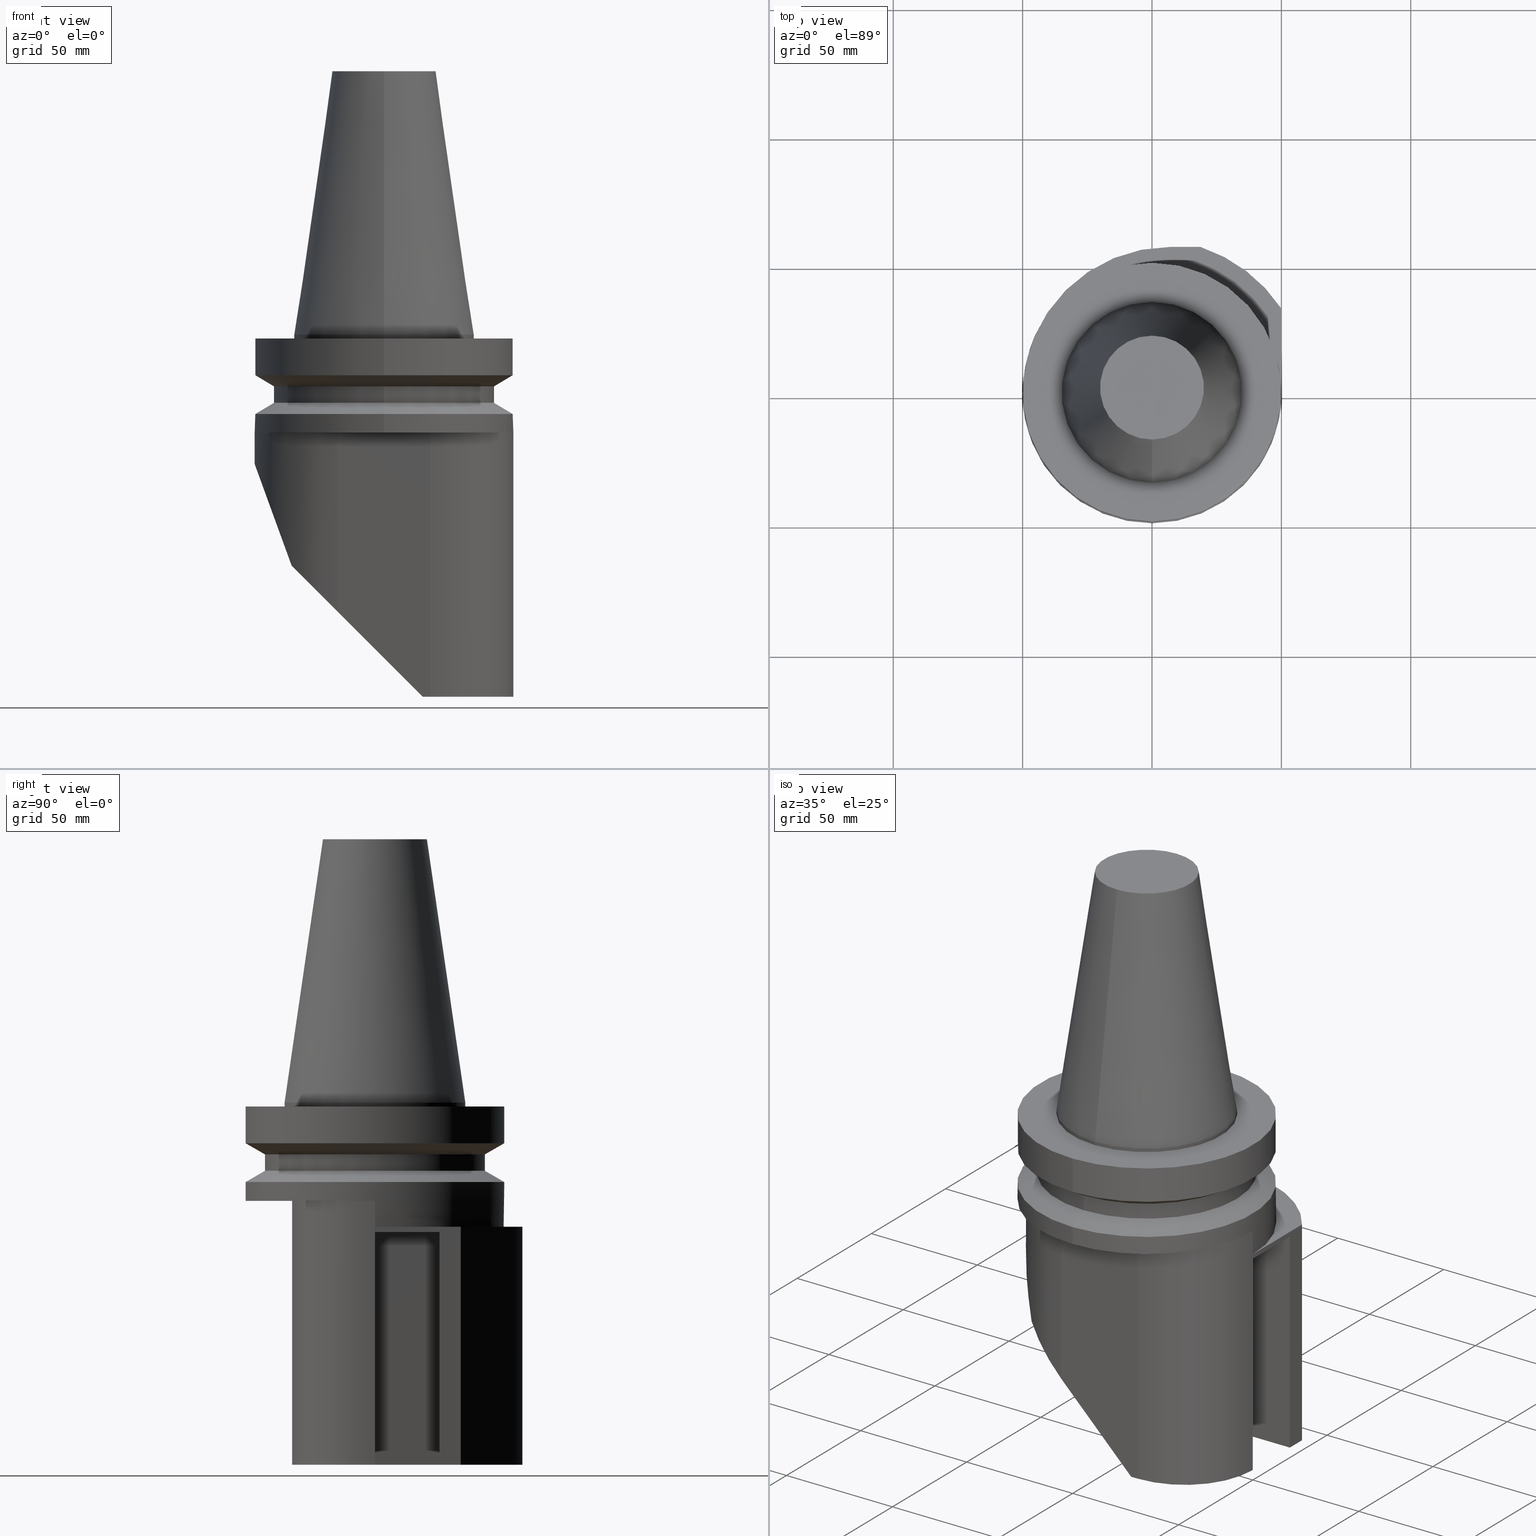
[diagram: canonical four-view strip — front | top / right | iso, engineering-drawing reading convention]
A machine part, canonical four-view strip (front | top / right | iso — engineering-drawing reading convention). The complete STEP part file that produces these views, byte-faithful:
ISO-10303-21;
HEADER;
FILE_DESCRIPTION((''),'1');
FILE_NAME('T:/21_DXF\X2\30C730FC30BF4F5C621057FA6E96\X0\/BBT50M-180-BH25R-140.stp','2017-05-02T05:31:33',(''),(''),'Spatial Interop R21 SP3','Kubotek KeyCreator 2011 V10.0.2 (22737)',' ');
FILE_SCHEMA(('automotive_design'));
ENDSEC;
DATA;
#1=MECHANICAL_DESIGN_GEOMETRIC_PRESENTATION_REPRESENTATION(' ',(#10,#11,#12,#13,#14,#15,#16,#17,#18,#19,#20,#21,#22,#23,#24,#25,#26,#27,#28,#29,#30,#31,#32,#33,#34,#35,#36,#37,#38,#39,#40,#41,#42,#43,#44,#45,#46,#47,#48,#49,#50,#51,#52,#53,#54,#55,#56,#57,#58,#59,#60,#61,#62,#63,#64,#65,#66,#67,#68,#69,#70,#71,#72,#73,#74,#75,#76,#77,#78,#79,#80,#81,#82,#83,#84,#85),#6);
#2=PRODUCT_DEFINITION_CONTEXT('',#86,'design');
#3=APPLICATION_PROTOCOL_DEFINITION('INTERNATIONAL STANDARD','automotive_design',1994,#86);
#4=PRODUCT_CATEGORY_RELATIONSHIP('NONE','NONE',#87,#88);
#5=SHAPE_DEFINITION_REPRESENTATION(#89,#90);
#6= (GEOMETRIC_REPRESENTATION_CONTEXT(3)GLOBAL_UNCERTAINTY_ASSIGNED_CONTEXT((#93))GLOBAL_UNIT_ASSIGNED_CONTEXT((#95,#96,#97))REPRESENTATION_CONTEXT('NONE','WORKSPACE'));
#10=STYLED_ITEM('',(#99),#100);
#11=STYLED_ITEM('',(#101,#102),#103);
#12=STYLED_ITEM('',(#104),#105);
#13=STYLED_ITEM('',(#106,#107),#108);
#14=STYLED_ITEM('',(#109),#110);
#15=STYLED_ITEM('',(#111),#112);
#16=STYLED_ITEM('',(#113),#114);
#17=STYLED_ITEM('',(#115),#116);
#18=STYLED_ITEM('',(#117),#118);
#19=STYLED_ITEM('',(#119),#120);
#20=STYLED_ITEM('',(#121,#122),#123);
#21=STYLED_ITEM('',(#124),#125);
#22=STYLED_ITEM('',(#126),#127);
#23=STYLED_ITEM('',(#128),#129);
#24=STYLED_ITEM('',(#130),#131);
#25=STYLED_ITEM('',(#132),#133);
#26=STYLED_ITEM('',(#134,#135),#136);
#27=STYLED_ITEM('',(#137),#138);
#28=STYLED_ITEM('',(#139,#140),#141);
#29=STYLED_ITEM('',(#142),#143);
#30=STYLED_ITEM('',(#144),#145);
#31=STYLED_ITEM('',(#146),#147);
#32=STYLED_ITEM('',(#148),#149);
#33=STYLED_ITEM('',(#150,#151),#152);
#34=STYLED_ITEM('',(#153),#154);
#35=STYLED_ITEM('',(#155,#156),#157);
#36=STYLED_ITEM('',(#158),#159);
#37=STYLED_ITEM('',(#160,#161),#162);
#38=STYLED_ITEM('',(#163,#164),#165);
#39=STYLED_ITEM('',(#166),#167);
#40=STYLED_ITEM('',(#168,#169),#170);
#41=STYLED_ITEM('',(#171),#172);
#42=STYLED_ITEM('',(#173),#174);
#43=STYLED_ITEM('',(#175,#176),#177);
#44=STYLED_ITEM('',(#178),#179);
#45=STYLED_ITEM('',(#180,#181),#182);
#46=STYLED_ITEM('',(#183,#184),#185);
#47=STYLED_ITEM('',(#186,#187),#188);
#48=STYLED_ITEM('',(#189,#190),#191);
#49=STYLED_ITEM('',(#192),#193);
#50=STYLED_ITEM('',(#194),#195);
#51=STYLED_ITEM('',(#196),#197);
#52=STYLED_ITEM('',(#198,#199),#200);
#53=STYLED_ITEM('',(#201),#202);
#54=STYLED_ITEM('',(#203),#204);
#55=STYLED_ITEM('',(#205,#206),#207);
#56=STYLED_ITEM('',(#208),#209);
#57=STYLED_ITEM('',(#210),#211);
#58=STYLED_ITEM('',(#212,#213),#214);
#59=STYLED_ITEM('',(#215,#216),#217);
#60=STYLED_ITEM('',(#218),#219);
#61=STYLED_ITEM('',(#220),#221);
#62=STYLED_ITEM('',(#222),#223);
#63=STYLED_ITEM('',(#224),#225);
#64=STYLED_ITEM('',(#226,#227),#228);
#65=STYLED_ITEM('',(#229),#230);
#66=STYLED_ITEM('',(#231),#232);
#67=STYLED_ITEM('',(#233),#234);
#68=STYLED_ITEM('',(#235),#236);
#69=STYLED_ITEM('',(#237,#238),#239);
#70=STYLED_ITEM('',(#240),#241);
#71=STYLED_ITEM('',(#242,#243),#244);
#72=STYLED_ITEM('',(#245),#246);
#73=STYLED_ITEM('',(#247),#248);
#74=STYLED_ITEM('',(#249),#250);
#75=STYLED_ITEM('',(#251,#252),#253);
#76=STYLED_ITEM('',(#254),#255);
#77=STYLED_ITEM('',(#256),#257);
#78=STYLED_ITEM('',(#258),#259);
#79=STYLED_ITEM('',(#260),#261);
#80=STYLED_ITEM('',(#262,#263),#264);
#81=STYLED_ITEM('',(#265),#266);
#82=STYLED_ITEM('',(#267),#268);
#83=STYLED_ITEM('',(#269,#270),#271);
#84=STYLED_ITEM('',(#272,#273),#274);
#85=STYLED_ITEM('',(#275),#276);
#86=APPLICATION_CONTEXT(' ');
#87=PRODUCT_CATEGORY('part','NONE');
#88=PRODUCT_RELATED_PRODUCT_CATEGORY('detail',' ',(#277));
#89=PRODUCT_DEFINITION_SHAPE('NONE','NONE',#278);
#90=ADVANCED_BREP_SHAPE_REPRESENTATION('Unnamed[1]',(#217,#279),#6);
#93=UNCERTAINTY_MEASURE_WITH_UNIT(LENGTH_MEASURE(1.0E-006),#95,'','');
#95= (CONVERSION_BASED_UNIT('MILLIMETRE',#282)LENGTH_UNIT()NAMED_UNIT(#285));
#96= (NAMED_UNIT(#287)PLANE_ANGLE_UNIT()SI_UNIT($,.RADIAN.));
#97= (NAMED_UNIT(#287)SOLID_ANGLE_UNIT()SI_UNIT($,.STERADIAN.));
#99=PRESENTATION_STYLE_ASSIGNMENT((#293));
#100=EDGE_CURVE('Unnamed[1]',#294,#295,#296,.T.);
#101=PRESENTATION_STYLE_ASSIGNMENT((#297));
#102=PRESENTATION_STYLE_ASSIGNMENT((#298));
#103=ADVANCED_FACE('Unnamed[1]',(#299),#300,.F.);
#104=PRESENTATION_STYLE_ASSIGNMENT((#301));
#105=EDGE_CURVE('Unnamed[1]',#302,#303,#304,.T.);
#106=PRESENTATION_STYLE_ASSIGNMENT((#305));
#107=PRESENTATION_STYLE_ASSIGNMENT((#306));
#108=ADVANCED_FACE('Unnamed[1]',(#307,#308),#309,.T.);
#109=PRESENTATION_STYLE_ASSIGNMENT((#310));
#110=EDGE_CURVE('Unnamed[1]',#311,#312,#313,.T.);
#111=PRESENTATION_STYLE_ASSIGNMENT((#314));
#112=EDGE_CURVE('Unnamed[1]',#315,#316,#317,.T.);
#113=PRESENTATION_STYLE_ASSIGNMENT((#318));
#114=EDGE_CURVE('Unnamed[1]',#303,#319,#320,.T.);
#115=PRESENTATION_STYLE_ASSIGNMENT((#321));
#116=EDGE_CURVE('Unnamed[1]',#322,#303,#323,.T.);
#117=PRESENTATION_STYLE_ASSIGNMENT((#324));
#118=EDGE_CURVE('Unnamed[1]',#325,#326,#327,.T.);
#119=PRESENTATION_STYLE_ASSIGNMENT((#328));
#120=EDGE_CURVE('Unnamed[1]',#319,#329,#330,.T.);
#121=PRESENTATION_STYLE_ASSIGNMENT((#331));
#122=PRESENTATION_STYLE_ASSIGNMENT((#332));
#123=ADVANCED_FACE('Unnamed[1]',(#333),#334,.F.);
#124=PRESENTATION_STYLE_ASSIGNMENT((#335));
#125=EDGE_CURVE('Unnamed[1]',#336,#337,#338,.T.);
#126=PRESENTATION_STYLE_ASSIGNMENT((#339));
#127=EDGE_CURVE('Unnamed[1]',#340,#302,#341,.T.);
#128=PRESENTATION_STYLE_ASSIGNMENT((#342));
#129=EDGE_CURVE('Unnamed[1]',#343,#343,#344,.T.);
#130=PRESENTATION_STYLE_ASSIGNMENT((#345));
#131=EDGE_CURVE('Unnamed[1]',#295,#346,#347,.T.);
#132=PRESENTATION_STYLE_ASSIGNMENT((#348));
#133=EDGE_CURVE('Unnamed[1]',#349,#349,#350,.T.);
#134=PRESENTATION_STYLE_ASSIGNMENT((#351));
#135=PRESENTATION_STYLE_ASSIGNMENT((#352));
#136=ADVANCED_FACE('Unnamed[1]',(#353),#354,.T.);
#137=PRESENTATION_STYLE_ASSIGNMENT((#355));
#138=EDGE_CURVE('Unnamed[1]',#356,#357,#358,.T.);
#139=PRESENTATION_STYLE_ASSIGNMENT((#359));
#140=PRESENTATION_STYLE_ASSIGNMENT((#360));
#141=ADVANCED_FACE('Unnamed[1]',(#361),#362,.F.);
#142=PRESENTATION_STYLE_ASSIGNMENT((#363));
#143=EDGE_CURVE('Unnamed[1]',#295,#364,#365,.T.);
#144=PRESENTATION_STYLE_ASSIGNMENT((#366));
#145=EDGE_CURVE('Unnamed[1]',#346,#326,#367,.T.);
#146=PRESENTATION_STYLE_ASSIGNMENT((#368));
#147=EDGE_CURVE('Unnamed[1]',#337,#357,#369,.T.);
#148=PRESENTATION_STYLE_ASSIGNMENT((#370));
#149=EDGE_CURVE('Unnamed[1]',#364,#371,#372,.T.);
#150=PRESENTATION_STYLE_ASSIGNMENT((#373));
#151=PRESENTATION_STYLE_ASSIGNMENT((#374));
#152=ADVANCED_FACE('Unnamed[1]',(#375,#376),#377,.T.);
#153=PRESENTATION_STYLE_ASSIGNMENT((#378));
#154=EDGE_CURVE('Unnamed[1]',#322,#329,#379,.T.);
#155=PRESENTATION_STYLE_ASSIGNMENT((#380));
#156=PRESENTATION_STYLE_ASSIGNMENT((#381));
#157=ADVANCED_FACE('Unnamed[1]',(#382),#383,.T.);
#158=PRESENTATION_STYLE_ASSIGNMENT((#384));
#159=EDGE_CURVE('Unnamed[1]',#302,#336,#385,.T.);
#160=PRESENTATION_STYLE_ASSIGNMENT((#386));
#161=PRESENTATION_STYLE_ASSIGNMENT((#387));
#162=ADVANCED_FACE('Unnamed[1]',(#388),#389,.T.);
#163=PRESENTATION_STYLE_ASSIGNMENT((#390));
#164=PRESENTATION_STYLE_ASSIGNMENT((#391));
#165=ADVANCED_FACE('Unnamed[1]',(#392),#393,.F.);
#166=PRESENTATION_STYLE_ASSIGNMENT((#394));
#167=EDGE_CURVE('Unnamed[1]',#340,#311,#395,.T.);
#168=PRESENTATION_STYLE_ASSIGNMENT((#396));
#169=PRESENTATION_STYLE_ASSIGNMENT((#397));
#170=ADVANCED_FACE('Unnamed[1]',(#398),#399,.T.);
#171=PRESENTATION_STYLE_ASSIGNMENT((#400));
#172=EDGE_CURVE('Unnamed[1]',#401,#319,#402,.T.);
#173=PRESENTATION_STYLE_ASSIGNMENT((#403));
#174=EDGE_CURVE('Unnamed[1]',#404,#404,#405,.T.);
#175=PRESENTATION_STYLE_ASSIGNMENT((#406));
#176=PRESENTATION_STYLE_ASSIGNMENT((#407));
#177=ADVANCED_FACE('Unnamed[1]',(#408),#409,.F.);
#178=PRESENTATION_STYLE_ASSIGNMENT((#410));
#179=EDGE_CURVE('Unnamed[1]',#316,#411,#412,.T.);
#180=PRESENTATION_STYLE_ASSIGNMENT((#413));
#181=PRESENTATION_STYLE_ASSIGNMENT((#414));
#182=ADVANCED_FACE('Unnamed[1]',(#415),#416,.T.);
#183=PRESENTATION_STYLE_ASSIGNMENT((#417));
#184=PRESENTATION_STYLE_ASSIGNMENT((#418));
#185=ADVANCED_FACE('Unnamed[1]',(#419),#420,.F.);
#186=PRESENTATION_STYLE_ASSIGNMENT((#421));
#187=PRESENTATION_STYLE_ASSIGNMENT((#422));
#188=ADVANCED_FACE('Unnamed[1]',(#423),#424,.F.);
#189=PRESENTATION_STYLE_ASSIGNMENT((#425));
#190=PRESENTATION_STYLE_ASSIGNMENT((#426));
#191=ADVANCED_FACE('Unnamed[1]',(#427),#428,.F.);
#192=PRESENTATION_STYLE_ASSIGNMENT((#429));
#193=EDGE_CURVE('Unnamed[1]',#325,#430,#431,.T.);
#194=PRESENTATION_STYLE_ASSIGNMENT((#432));
#195=EDGE_CURVE('Unnamed[1]',#312,#411,#433,.T.);
#196=PRESENTATION_STYLE_ASSIGNMENT((#434));
#197=EDGE_CURVE('Unnamed[1]',#435,#411,#436,.T.);
#198=PRESENTATION_STYLE_ASSIGNMENT((#437));
#199=PRESENTATION_STYLE_ASSIGNMENT((#438));
#200=ADVANCED_FACE('Unnamed[1]',(#439,#440),#441,.T.);
#201=PRESENTATION_STYLE_ASSIGNMENT((#442));
#202=EDGE_CURVE('Unnamed[1]',#294,#401,#443,.T.);
#203=PRESENTATION_STYLE_ASSIGNMENT((#444));
#204=EDGE_CURVE('Unnamed[1]',#445,#316,#446,.T.);
#205=PRESENTATION_STYLE_ASSIGNMENT((#447));
#206=PRESENTATION_STYLE_ASSIGNMENT((#448));
#207=ADVANCED_FACE('Unnamed[1]',(#449),#450,.T.);
#208=PRESENTATION_STYLE_ASSIGNMENT((#451));
#209=EDGE_CURVE('Unnamed[1]',#435,#452,#453,.T.);
#210=PRESENTATION_STYLE_ASSIGNMENT((#454));
#211=EDGE_CURVE('Unnamed[1]',#455,#455,#456,.T.);
#212=PRESENTATION_STYLE_ASSIGNMENT((#457));
#213=PRESENTATION_STYLE_ASSIGNMENT((#458));
#214=ADVANCED_FACE('Unnamed[1]',(#459,#460),#461,.T.);
#215=PRESENTATION_STYLE_ASSIGNMENT((#462));
#216=PRESENTATION_STYLE_ASSIGNMENT((#463));
#217=MANIFOLD_SOLID_BREP('Unnamed[1]',#464);
#218=PRESENTATION_STYLE_ASSIGNMENT((#465));
#219=EDGE_CURVE('Unnamed[1]',#411,#322,#466,.T.);
#220=PRESENTATION_STYLE_ASSIGNMENT((#467));
#221=EDGE_CURVE('Unnamed[1]',#445,#311,#468,.T.);
#222=PRESENTATION_STYLE_ASSIGNMENT((#469));
#223=EDGE_CURVE('Unnamed[1]',#435,#329,#470,.T.);
#224=PRESENTATION_STYLE_ASSIGNMENT((#471));
#225=EDGE_CURVE('Unnamed[1]',#472,#472,#473,.T.);
#226=PRESENTATION_STYLE_ASSIGNMENT((#474));
#227=PRESENTATION_STYLE_ASSIGNMENT((#475));
#228=ADVANCED_FACE('Unnamed[1]',(#476),#477,.T.);
#229=PRESENTATION_STYLE_ASSIGNMENT((#478));
#230=EDGE_CURVE('Unnamed[1]',#430,#346,#479,.T.);
#231=PRESENTATION_STYLE_ASSIGNMENT((#480));
#232=EDGE_CURVE('Unnamed[1]',#452,#315,#481,.T.);
#233=PRESENTATION_STYLE_ASSIGNMENT((#482));
#234=EDGE_CURVE('Unnamed[1]',#430,#294,#483,.T.);
#235=PRESENTATION_STYLE_ASSIGNMENT((#484));
#236=EDGE_CURVE('Unnamed[1]',#485,#485,#486,.T.);
#237=PRESENTATION_STYLE_ASSIGNMENT((#487));
#238=PRESENTATION_STYLE_ASSIGNMENT((#488));
#239=ADVANCED_FACE('Unnamed[1]',(#489,#490),#491,.T.);
#240=PRESENTATION_STYLE_ASSIGNMENT((#492));
#241=EDGE_CURVE('Unnamed[1]',#315,#357,#493,.F.);
#242=PRESENTATION_STYLE_ASSIGNMENT((#494));
#243=PRESENTATION_STYLE_ASSIGNMENT((#495));
#244=ADVANCED_FACE('Unnamed[1]',(#496),#497,.F.);
#245=PRESENTATION_STYLE_ASSIGNMENT((#498));
#246=EDGE_CURVE('Unnamed[1]',#356,#452,#499,.T.);
#247=PRESENTATION_STYLE_ASSIGNMENT((#500));
#248=EDGE_CURVE('Unnamed[1]',#501,#501,#502,.T.);
#249=PRESENTATION_STYLE_ASSIGNMENT((#503));
#250=EDGE_CURVE('Unnamed[1]',#337,#445,#504,.T.);
#251=PRESENTATION_STYLE_ASSIGNMENT((#505));
#252=PRESENTATION_STYLE_ASSIGNMENT((#506));
#253=ADVANCED_FACE('Unnamed[1]',(#507,#508),#509,.T.);
#254=PRESENTATION_STYLE_ASSIGNMENT((#510));
#255=EDGE_CURVE('Unnamed[1]',#356,#371,#511,.T.);
#256=PRESENTATION_STYLE_ASSIGNMENT((#512));
#257=EDGE_CURVE('Unnamed[1]',#295,#435,#513,.T.);
#258=PRESENTATION_STYLE_ASSIGNMENT((#514));
#259=EDGE_CURVE('Unnamed[1]',#401,#336,#515,.T.);
#260=PRESENTATION_STYLE_ASSIGNMENT((#516));
#261=EDGE_CURVE('Unnamed[1]',#517,#517,#518,.T.);
#262=PRESENTATION_STYLE_ASSIGNMENT((#519));
#263=PRESENTATION_STYLE_ASSIGNMENT((#520));
#264=ADVANCED_FACE('Unnamed[1]',(#521,#522),#523,.T.);
#265=PRESENTATION_STYLE_ASSIGNMENT((#524));
#266=EDGE_CURVE('Unnamed[1]',#312,#340,#525,.T.);
#267=PRESENTATION_STYLE_ASSIGNMENT((#526));
#268=EDGE_CURVE('Unnamed[1]',#326,#364,#527,.T.);
#269=PRESENTATION_STYLE_ASSIGNMENT((#528));
#270=PRESENTATION_STYLE_ASSIGNMENT((#529));
#271=ADVANCED_FACE('Unnamed[1]',(#530),#531,.T.);
#272=PRESENTATION_STYLE_ASSIGNMENT((#532));
#273=PRESENTATION_STYLE_ASSIGNMENT((#533));
#274=ADVANCED_FACE('Unnamed[1]',(#534,#535),#536,.T.);
#275=PRESENTATION_STYLE_ASSIGNMENT((#537));
#276=EDGE_CURVE('Unnamed[1]',#371,#325,#538,.T.);
#277=PRODUCT('Unnamed[1]','Unnamed[1]','PART-Unnamed[1]-DESC',(#539));
#278=PRODUCT_DEFINITION('NONE','NONE',#540,#2);
#279=AXIS2_PLACEMENT_3D('',#541,#542,#543);
#282=LENGTH_MEASURE_WITH_UNIT(LENGTH_MEASURE(1.0),#544);
#285=DIMENSIONAL_EXPONENTS(1.0,0.0,0.0,0.0,0.0,0.0,0.0);
#287=DIMENSIONAL_EXPONENTS(0.0,0.0,0.0,0.0,0.0,0.0,0.0);
#293=CURVE_STYLE('',#545,POSITIVE_LENGTH_MEASURE(1000.0),#546);
#294=VERTEX_POINT('',#547);
#295=VERTEX_POINT('',#548);
#296=LINE('',#549,#550);
#297=SURFACE_STYLE_USAGE(.BOTH.,#551);
#298=CURVE_STYLE('',#552,POSITIVE_LENGTH_MEASURE(1000.0),#553);
#299=FACE_OUTER_BOUND('',#554,.T.);
#300=PLANE('',#555);
#301=CURVE_STYLE('',#556,POSITIVE_LENGTH_MEASURE(1000.0),#557);
#302=VERTEX_POINT('',#558);
#303=VERTEX_POINT('',#559);
#304=LINE('',#560,#561);
#305=SURFACE_STYLE_USAGE(.BOTH.,#562);
#306=CURVE_STYLE('',#563,POSITIVE_LENGTH_MEASURE(1000.0),#564);
#307=FACE_BOUND('',#565,.T.);
#308=FACE_BOUND('',#566,.T.);
#309=CYLINDRICAL_SURFACE('',#567,50.0000000000019);
#310=CURVE_STYLE('',#568,POSITIVE_LENGTH_MEASURE(1000.0),#569);
#311=VERTEX_POINT('',#570);
#312=VERTEX_POINT('',#571);
#313=ELLIPSE('',#572,166.656850809297,57.0);
#314=CURVE_STYLE('',#573,POSITIVE_LENGTH_MEASURE(1000.0),#574);
#315=VERTEX_POINT('',#575);
#316=VERTEX_POINT('',#576);
#317=LINE('',#577,#578);
#318=CURVE_STYLE('',#579,POSITIVE_LENGTH_MEASURE(1000.0),#580);
#319=VERTEX_POINT('',#581);
#320=LINE('',#582,#583);
#321=CURVE_STYLE('',#584,POSITIVE_LENGTH_MEASURE(1000.0),#585);
#322=VERTEX_POINT('',#586);
#323=CIRCLE('',#587,32.0);
#324=CURVE_STYLE('',#588,POSITIVE_LENGTH_MEASURE(1000.0),#589);
#325=VERTEX_POINT('',#590);
#326=VERTEX_POINT('',#591);
#327=LINE('',#592,#593);
#328=CURVE_STYLE('',#594,POSITIVE_LENGTH_MEASURE(1000.0),#595);
#329=VERTEX_POINT('',#596);
#330=CIRCLE('',#597,32.0);
#331=SURFACE_STYLE_USAGE(.BOTH.,#598);
#332=CURVE_STYLE('',#599,POSITIVE_LENGTH_MEASURE(1000.0),#600);
#333=FACE_OUTER_BOUND('',#601,.T.);
#334=PLANE('',#602);
#335=CURVE_STYLE('',#603,POSITIVE_LENGTH_MEASURE(1000.0),#604);
#336=VERTEX_POINT('',#605);
#337=VERTEX_POINT('',#606);
#338=LINE('',#607,#608);
#339=CURVE_STYLE('',#609,POSITIVE_LENGTH_MEASURE(1000.0),#610);
#340=VERTEX_POINT('',#611);
#341=ELLIPSE('',#612,45.2548339959391,32.0);
#342=CURVE_STYLE('',#613,POSITIVE_LENGTH_MEASURE(1000.0),#614);
#343=VERTEX_POINT('',#615);
#344=CIRCLE('',#616,34.9250000000018);
#345=CURVE_STYLE('',#617,POSITIVE_LENGTH_MEASURE(1000.0),#618);
#346=VERTEX_POINT('',#619);
#347=LINE('',#620,#621);
#348=CURVE_STYLE('',#622,POSITIVE_LENGTH_MEASURE(1000.0),#623);
#349=VERTEX_POINT('',#624);
#350=CIRCLE('',#625,50.0000000000015);
#351=SURFACE_STYLE_USAGE(.BOTH.,#626);
#352=CURVE_STYLE('',#627,POSITIVE_LENGTH_MEASURE(1000.0),#628);
#353=FACE_OUTER_BOUND('',#629,.T.);
#354=CYLINDRICAL_SURFACE('',#630,60.0);
#355=CURVE_STYLE('',#631,POSITIVE_LENGTH_MEASURE(1000.0),#632);
#356=VERTEX_POINT('',#633);
#357=VERTEX_POINT('',#634);
#358=CIRCLE('',#635,60.0);
#359=SURFACE_STYLE_USAGE(.BOTH.,#636);
#360=CURVE_STYLE('',#637,POSITIVE_LENGTH_MEASURE(1000.0),#638);
#361=FACE_OUTER_BOUND('',#639,.T.);
#362=PLANE('',#640);
#363=CURVE_STYLE('',#641,POSITIVE_LENGTH_MEASURE(1000.0),#642);
#364=VERTEX_POINT('',#643);
#365=LINE('',#644,#645);
#366=CURVE_STYLE('',#646,POSITIVE_LENGTH_MEASURE(1000.0),#647);
#367=LINE('',#648,#649);
#368=CURVE_STYLE('',#650,POSITIVE_LENGTH_MEASURE(1000.0),#651);
#369=LINE('',#652,#653);
#370=CURVE_STYLE('',#654,POSITIVE_LENGTH_MEASURE(1000.0),#655);
#371=VERTEX_POINT('',#656);
#372=LINE('',#657,#658);
#373=SURFACE_STYLE_USAGE(.BOTH.,#659);
#374=CURVE_STYLE('',#660,POSITIVE_LENGTH_MEASURE(1000.0),#661);
#375=FACE_BOUND('',#662,.T.);
#376=FACE_BOUND('',#663,.T.);
#377=CYLINDRICAL_SURFACE('',#664,49.9999999999992);
#378=CURVE_STYLE('',#665,POSITIVE_LENGTH_MEASURE(1000.0),#666);
#379=CIRCLE('',#667,49.9999999999992);
#380=SURFACE_STYLE_USAGE(.BOTH.,#668);
#381=CURVE_STYLE('',#669,POSITIVE_LENGTH_MEASURE(1000.0),#670);
#382=FACE_OUTER_BOUND('',#671,.T.);
#383=CYLINDRICAL_SURFACE('',#672,57.0);
#384=CURVE_STYLE('',#673,POSITIVE_LENGTH_MEASURE(1000.0),#674);
#385=LINE('',#675,#676);
#386=SURFACE_STYLE_USAGE(.BOTH.,#677);
#387=CURVE_STYLE('',#678,POSITIVE_LENGTH_MEASURE(1000.0),#679);
#388=FACE_OUTER_BOUND('',#680,.T.);
#389=PLANE('',#681);
#390=SURFACE_STYLE_USAGE(.BOTH.,#682);
#391=CURVE_STYLE('',#683,POSITIVE_LENGTH_MEASURE(1000.0),#684);
#392=FACE_OUTER_BOUND('',#685,.T.);
#393=PLANE('',#686);
#394=CURVE_STYLE('',#687,POSITIVE_LENGTH_MEASURE(1000.0),#688);
#395=LINE('',#689,#690);
#396=SURFACE_STYLE_USAGE(.BOTH.,#691);
#397=CURVE_STYLE('',#692,POSITIVE_LENGTH_MEASURE(1000.0),#693);
#398=FACE_OUTER_BOUND('',#694,.T.);
#399=CYLINDRICAL_SURFACE('',#695,32.0);
#400=CURVE_STYLE('',#696,POSITIVE_LENGTH_MEASURE(1000.0),#697);
#401=VERTEX_POINT('',#698);
#402=LINE('',#699,#700);
#403=CURVE_STYLE('',#701,POSITIVE_LENGTH_MEASURE(1000.0),#702);
#404=VERTEX_POINT('',#703);
#405=CIRCLE('',#704,42.5000000000008);
#406=SURFACE_STYLE_USAGE(.BOTH.,#705);
#407=CURVE_STYLE('',#706,POSITIVE_LENGTH_MEASURE(1000.0),#707);
#408=FACE_OUTER_BOUND('',#708,.T.);
#409=PLANE('',#709);
#410=CURVE_STYLE('',#710,POSITIVE_LENGTH_MEASURE(1000.0),#711);
#411=VERTEX_POINT('',#712);
#412=CIRCLE('',#713,57.0);
#413=SURFACE_STYLE_USAGE(.BOTH.,#714);
#414=CURVE_STYLE('',#715,POSITIVE_LENGTH_MEASURE(1000.0),#716);
#415=FACE_OUTER_BOUND('',#717,.T.);
#416=PLANE('',#718);
#417=SURFACE_STYLE_USAGE(.BOTH.,#719);
#418=CURVE_STYLE('',#720,POSITIVE_LENGTH_MEASURE(1000.0),#721);
#419=FACE_OUTER_BOUND('',#722,.T.);
#420=PLANE('',#723);
#421=SURFACE_STYLE_USAGE(.BOTH.,#724);
#422=CURVE_STYLE('',#725,POSITIVE_LENGTH_MEASURE(1000.0),#726);
#423=FACE_OUTER_BOUND('',#727,.T.);
#424=PLANE('',#728);
#425=SURFACE_STYLE_USAGE(.BOTH.,#729);
#426=CURVE_STYLE('',#730,POSITIVE_LENGTH_MEASURE(1000.0),#731);
#427=FACE_OUTER_BOUND('',#732,.T.);
#428=PLANE('',#733);
#429=CURVE_STYLE('',#734,POSITIVE_LENGTH_MEASURE(1000.0),#735);
#430=VERTEX_POINT('',#736);
#431=LINE('',#737,#738);
#432=CURVE_STYLE('',#739,POSITIVE_LENGTH_MEASURE(1000.0),#740);
#433=LINE('',#741,#742);
#434=CURVE_STYLE('',#743,POSITIVE_LENGTH_MEASURE(1000.0),#744);
#435=VERTEX_POINT('',#745);
#436=CIRCLE('',#746,49.9999999999981);
#437=SURFACE_STYLE_USAGE(.BOTH.,#747);
#438=CURVE_STYLE('',#748,POSITIVE_LENGTH_MEASURE(1000.0),#749);
#439=FACE_BOUND('',#750,.T.);
#440=FACE_BOUND('',#751,.T.);
#441=CYLINDRICAL_SURFACE('',#752,42.5000000000007);
#442=CURVE_STYLE('',#753,POSITIVE_LENGTH_MEASURE(1000.0),#754);
#443=CIRCLE('',#755,32.0);
#444=CURVE_STYLE('',#756,POSITIVE_LENGTH_MEASURE(1000.0),#757);
#445=VERTEX_POINT('',#758);
#446=LINE('',#759,#760);
#447=SURFACE_STYLE_USAGE(.BOTH.,#761);
#448=CURVE_STYLE('',#762,POSITIVE_LENGTH_MEASURE(1000.0),#763);
#449=FACE_OUTER_BOUND('',#764,.T.);
#450=PLANE('',#765);
#451=CURVE_STYLE('',#766,POSITIVE_LENGTH_MEASURE(1000.0),#767);
#452=VERTEX_POINT('',#768);
#453=LINE('',#769,#770);
#454=CURVE_STYLE('',#771,POSITIVE_LENGTH_MEASURE(1000.0),#772);
#455=VERTEX_POINT('',#773);
#456=CIRCLE('',#774,34.9250000000018);
#457=SURFACE_STYLE_USAGE(.BOTH.,#775);
#458=CURVE_STYLE('',#776,POSITIVE_LENGTH_MEASURE(1000.0),#777);
#459=FACE_BOUND('',#778,.T.);
#460=FACE_BOUND('',#779,.T.);
#461=CONICAL_SURFACE('',#780,27.5020833333347,0.144812498238939);
#462=SURFACE_STYLE_USAGE(.BOTH.,#781);
#463=CURVE_STYLE('',#782,POSITIVE_LENGTH_MEASURE(1000.0),#783);
#464=CLOSED_SHELL('',(#244,#188,#103,#162,#177,#182,#165,#123,#141,#228,#191,#157,#185,#170,#136,#152,#207,#264,#200,#253,#108,#274,#239,#214,#271));
#465=CURVE_STYLE('',#784,POSITIVE_LENGTH_MEASURE(1000.0),#785);
#466=LINE('',#786,#787);
#467=CURVE_STYLE('',#788,POSITIVE_LENGTH_MEASURE(1000.0),#789);
#468=ELLIPSE('',#790,80.6101730552665,57.0);
#469=CURVE_STYLE('',#791,POSITIVE_LENGTH_MEASURE(1000.0),#792);
#470=LINE('',#793,#794);
#471=CURVE_STYLE('',#795,POSITIVE_LENGTH_MEASURE(1000.0),#796);
#472=VERTEX_POINT('',#797);
#473=CIRCLE('',#798,50.0000000000022);
#474=SURFACE_STYLE_USAGE(.BOTH.,#799);
#475=CURVE_STYLE('',#800,POSITIVE_LENGTH_MEASURE(1000.0),#801);
#476=FACE_OUTER_BOUND('',#802,.T.);
#477=CYLINDRICAL_SURFACE('',#803,32.0);
#478=CURVE_STYLE('',#804,POSITIVE_LENGTH_MEASURE(1000.0),#805);
#479=LINE('',#806,#807);
#480=CURVE_STYLE('',#808,POSITIVE_LENGTH_MEASURE(1000.0),#809);
#481=CIRCLE('',#810,60.0000000000001);
#482=CURVE_STYLE('',#811,POSITIVE_LENGTH_MEASURE(1000.0),#812);
#483=LINE('',#813,#814);
#484=CURVE_STYLE('',#815,POSITIVE_LENGTH_MEASURE(1000.0),#816);
#485=VERTEX_POINT('',#817);
#486=CIRCLE('',#818,20.0791666666676);
#487=SURFACE_STYLE_USAGE(.BOTH.,#819);
#488=CURVE_STYLE('',#820,POSITIVE_LENGTH_MEASURE(1000.0),#821);
#489=FACE_BOUND('',#822,.T.);
#490=FACE_BOUND('',#823,.T.);
#491=CYLINDRICAL_SURFACE('',#824,34.9250000000018);
#492=CURVE_STYLE('',#825,POSITIVE_LENGTH_MEASURE(1000.0),#826);
#493=LINE('',#827,#828);
#494=SURFACE_STYLE_USAGE(.BOTH.,#829);
#495=CURVE_STYLE('',#830,POSITIVE_LENGTH_MEASURE(1000.0),#831);
#496=FACE_OUTER_BOUND('',#832,.T.);
#497=PLANE('',#833);
#498=CURVE_STYLE('',#834,POSITIVE_LENGTH_MEASURE(1000.0),#835);
#499=LINE('',#836,#837);
#500=CURVE_STYLE('',#838,POSITIVE_LENGTH_MEASURE(1000.0),#839);
#501=VERTEX_POINT('',#840);
#502=CIRCLE('',#841,42.5000000000006);
#503=CURVE_STYLE('',#842,POSITIVE_LENGTH_MEASURE(1000.0),#843);
#504=LINE('',#844,#845);
#505=SURFACE_STYLE_USAGE(.BOTH.,#846);
#506=CURVE_STYLE('',#847,POSITIVE_LENGTH_MEASURE(1000.0),#848);
#507=FACE_BOUND('',#849,.T.);
#508=FACE_BOUND('',#850,.T.);
#509=CONICAL_SURFACE('',#851,46.2500000000011,1.04719755119665);
#510=CURVE_STYLE('',#852,POSITIVE_LENGTH_MEASURE(1000.0),#853);
#511=LINE('',#854,#855);
#512=CURVE_STYLE('',#856,POSITIVE_LENGTH_MEASURE(1000.0),#857);
#513=LINE('',#858,#859);
#514=CURVE_STYLE('',#860,POSITIVE_LENGTH_MEASURE(1000.0),#861);
#515=LINE('',#862,#863);
#516=CURVE_STYLE('',#864,POSITIVE_LENGTH_MEASURE(1000.0),#865);
#517=VERTEX_POINT('',#866);
#518=CIRCLE('',#867,50.0000000000003);
#519=SURFACE_STYLE_USAGE(.BOTH.,#868);
#520=CURVE_STYLE('',#869,POSITIVE_LENGTH_MEASURE(1000.0),#870);
#521=FACE_BOUND('',#871,.T.);
#522=FACE_BOUND('',#872,.T.);
#523=CONICAL_SURFACE('',#873,46.2500000000005,1.04719755119655);
#524=CURVE_STYLE('',#874,POSITIVE_LENGTH_MEASURE(1000.0),#875);
#525=ELLIPSE('',#876,93.5617408052193,32.0);
#526=CURVE_STYLE('',#877,POSITIVE_LENGTH_MEASURE(1000.0),#878);
#527=LINE('',#879,#880);
#528=SURFACE_STYLE_USAGE(.BOTH.,#881);
#529=CURVE_STYLE('',#882,POSITIVE_LENGTH_MEASURE(1000.0),#883);
#530=FACE_OUTER_BOUND('',#884,.T.);
#531=PLANE('',#885);
#532=SURFACE_STYLE_USAGE(.BOTH.,#886);
#533=CURVE_STYLE('',#887,POSITIVE_LENGTH_MEASURE(1000.0),#888);
#534=FACE_OUTER_BOUND('',#889,.T.);
#535=FACE_BOUND('',#890,.T.);
#536=PLANE('',#891);
#537=CURVE_STYLE('',#892,POSITIVE_LENGTH_MEASURE(1000.0),#893);
#538=LINE('',#894,#895);
#539=PRODUCT_CONTEXT('',#86,'mechanical');
#540=PRODUCT_DEFINITION_FORMATION_WITH_SPECIFIED_SOURCE(' ','NONE',#277,.NOT_KNOWN.);
#541=CARTESIAN_POINT('',(0.0,0.0,0.0));
#542=DIRECTION('',(0.0,0.0,1.0));
#543=DIRECTION('',(1.0,0.0,0.0));
#544= (NAMED_UNIT(#285)LENGTH_UNIT()SI_UNIT(.MILLI.,.METRE.));
#545=DRAUGHTING_PRE_DEFINED_CURVE_FONT('continuous');
#546=COLOUR_RGB('',0.0,1.0,0.0);
#547=CARTESIAN_POINT('',(50.0000000000038,4.15851862521527E-012,-140.000000000001));
#548=CARTESIAN_POINT('',(50.0000000000038,3.76363904610196E-012,-49.9999999999986));
#549=CARTESIAN_POINT('',(50.0000000000038,4.17394917488453E-012,-266.000000000001));
#550=VECTOR('',#897,1.0);
#551=SURFACE_SIDE_STYLE('',(#898));
#552=DRAUGHTING_PRE_DEFINED_CURVE_FONT('continuous');
#553=COLOUR_RGB('',0.0,1.0,0.0);
#554=EDGE_LOOP('',(#899,#900,#901,#902,#903));
#555=AXIS2_PLACEMENT_3D('',#904,#905,#906);
#556=DRAUGHTING_PRE_DEFINED_CURVE_FONT('continuous');
#557=COLOUR_RGB('',0.0,1.0,0.0);
#558=CARTESIAN_POINT('',(-17.9999999999983,-31.9999999999922,-107.000000000001));
#559=CARTESIAN_POINT('',(-17.9999999999983,-31.9999999999922,-38.0000000000021));
#560=CARTESIAN_POINT('',(-17.9999999999983,-31.9999999999922,-266.000000000001));
#561=VECTOR('',#907,1.0);
#562=SURFACE_SIDE_STYLE('',(#908));
#563=DRAUGHTING_PRE_DEFINED_CURVE_FONT('continuous');
#564=COLOUR_RGB('',0.0,1.0,0.0);
#565=EDGE_LOOP('',(#909));
#566=EDGE_LOOP('',(#910));
#567=AXIS2_PLACEMENT_3D('',#911,#912,#913);
#568=DRAUGHTING_PRE_DEFINED_CURVE_FONT('continuous');
#569=COLOUR_RGB('',0.0,1.0,0.0);
#570=CARTESIAN_POINT('',(-35.693663493626,37.7657397318431,-89.3063365063732));
#571=CARTESIAN_POINT('',(-49.9999999999965,7.79815138142592E-012,-50.0000000000008));
#572=AXIS2_PLACEMENT_3D('',#914,#915,#916);
#573=DRAUGHTING_PRE_DEFINED_CURVE_FONT('continuous');
#574=COLOUR_RGB('',0.0,1.0,0.0);
#575=CARTESIAN_POINT('',(18.7349939951755,57.0000000000065,-48.0000000000148));
#576=CARTESIAN_POINT('',(7.00000000000574,57.0000000000065,-48.0000000000148));
#577=CARTESIAN_POINT('',(5.01917420765734,57.0000000000065,-48.0000000000148));
#578=VECTOR('',#917,1.0);
#579=DRAUGHTING_PRE_DEFINED_CURVE_FONT('continuous');
#580=COLOUR_RGB('',0.0,1.0,0.0);
#581=CARTESIAN_POINT('',(18.0000000000017,-31.9999999999942,-38.0000000000021));
#582=CARTESIAN_POINT('',(-17.9999999999983,-31.9999999999919,-38.0000000000021));
#583=VECTOR('',#918,1.0);
#584=DRAUGHTING_PRE_DEFINED_CURVE_FONT('continuous');
#585=COLOUR_RGB('',0.0,1.0,0.0);
#586=CARTESIAN_POINT('',(-49.9999999999973,9.85431223564382E-012,-38.000000000002));
#587=AXIS2_PLACEMENT_3D('',#919,#920,#921);
#588=DRAUGHTING_PRE_DEFINED_CURVE_FONT('continuous');
#589=COLOUR_RGB('',0.0,1.0,0.0);
#590=CARTESIAN_POINT('',(25.0000000000052,25.0000000000054,-140.000000000001));
#591=CARTESIAN_POINT('',(25.0000000000052,25.0000000000054,-49.9999999999986));
#592=CARTESIAN_POINT('',(25.0000000000052,25.0000000000054,-266.000000000001));
#593=VECTOR('',#922,1.0);
#594=DRAUGHTING_PRE_DEFINED_CURVE_FONT('continuous');
#595=COLOUR_RGB('',0.0,1.0,0.0);
#596=CARTESIAN_POINT('',(50.0000000000038,4.14602722786397E-012,-38.000000000002));
#597=AXIS2_PLACEMENT_3D('',#923,#924,#925);
#598=SURFACE_SIDE_STYLE('',(#926));
#599=DRAUGHTING_PRE_DEFINED_CURVE_FONT('continuous');
#600=COLOUR_RGB('',0.0,1.0,0.0);
#601=EDGE_LOOP('',(#927,#928,#929,#930));
#602=AXIS2_PLACEMENT_3D('',#931,#932,#933);
#603=DRAUGHTING_PRE_DEFINED_CURVE_FONT('continuous');
#604=COLOUR_RGB('',0.0,1.0,0.0);
#605=CARTESIAN_POINT('',(14.9999999999999,-31.999999999994,-139.999999999999));
#606=CARTESIAN_POINT('',(15.0000000000013,57.0000000000065,-140.000000000001));
#607=CARTESIAN_POINT('',(14.9999999999999,-95.4999999999988,-139.999999999999));
#608=VECTOR('',#934,1.0);
#609=DRAUGHTING_PRE_DEFINED_CURVE_FONT('continuous');
#610=COLOUR_RGB('',0.0,1.0,0.0);
#611=CARTESIAN_POINT('',(-35.693663493626,-26.6633507304275,-89.3063365063732));
#612=AXIS2_PLACEMENT_3D('',#935,#936,#937);
#613=DRAUGHTING_PRE_DEFINED_CURVE_FONT('continuous');
#614=COLOUR_RGB('',0.0,1.0,0.0);
#615=CARTESIAN_POINT('',(3.8631367723339E-028,-34.9250000000018,-6.30622787228313E-012));
#616=AXIS2_PLACEMENT_3D('',#938,#939,#940);
#617=DRAUGHTING_PRE_DEFINED_CURVE_FONT('continuous');
#618=COLOUR_RGB('',0.0,1.0,0.0);
#619=CARTESIAN_POINT('',(25.0000000000034,4.41148559681693E-012,-49.9999999999986));
#620=CARTESIAN_POINT('',(66.7097125362685,3.33062586089966E-012,-49.9999999999985));
#621=VECTOR('',#941,1.0);
#622=DRAUGHTING_PRE_DEFINED_CURVE_FONT('continuous');
#623=COLOUR_RGB('',0.0,1.0,0.0);
#624=CARTESIAN_POINT('',(9.613477373308E-016,-50.0000000000015,-15.7000000000021));
#625=AXIS2_PLACEMENT_3D('',#942,#943,#944);
#626=SURFACE_SIDE_STYLE('',(#945));
#627=DRAUGHTING_PRE_DEFINED_CURVE_FONT('continuous');
#628=COLOUR_RGB('',0.0,1.0,0.0);
#629=EDGE_LOOP('',(#946,#947,#948,#949));
#630=AXIS2_PLACEMENT_3D('',#950,#951,#952);
#631=DRAUGHTING_PRE_DEFINED_CURVE_FONT('continuous');
#632=COLOUR_RGB('',0.0,1.0,0.0);
#633=CARTESIAN_POINT('',(49.9999999038906,33.1662480484445,-140.000000000001));
#634=CARTESIAN_POINT('',(18.7349939951759,57.0000000000065,-140.000000000001));
#635=AXIS2_PLACEMENT_3D('',#953,#954,#955);
#636=SURFACE_SIDE_STYLE('',(#956));
#637=DRAUGHTING_PRE_DEFINED_CURVE_FONT('continuous');
#638=COLOUR_RGB('',0.0,1.0,0.0);
#639=EDGE_LOOP('',(#957,#958,#959,#960,#961,#962));
#640=AXIS2_PLACEMENT_3D('',#963,#964,#965);
#641=DRAUGHTING_PRE_DEFINED_CURVE_FONT('continuous');
#642=COLOUR_RGB('',0.0,1.0,0.0);
#643=CARTESIAN_POINT('',(49.9999999275556,25.0000000000043,-49.9999999999986));
#644=CARTESIAN_POINT('',(49.9999999598177,13.8670804485392,-49.9999999999986));
#645=VECTOR('',#966,1.0);
#646=DRAUGHTING_PRE_DEFINED_CURVE_FONT('continuous');
#647=COLOUR_RGB('',0.0,1.0,0.0);
#648=CARTESIAN_POINT('',(25.0000000000052,25.0000000000054,-49.9999999999986));
#649=VECTOR('',#967,1.0);
#650=DRAUGHTING_PRE_DEFINED_CURVE_FONT('continuous');
#651=COLOUR_RGB('',0.0,1.0,0.0);
#652=CARTESIAN_POINT('',(5.0191742076574,57.0000000000065,-140.000000000001));
#653=VECTOR('',#968,1.0);
#654=DRAUGHTING_PRE_DEFINED_CURVE_FONT('continuous');
#655=COLOUR_RGB('',0.0,1.0,0.0);
#656=CARTESIAN_POINT('',(49.9999999275556,25.0000000000043,-140.000000000001));
#657=CARTESIAN_POINT('',(49.9999999275556,25.0000000000043,-266.000000000001));
#658=VECTOR('',#969,1.0);
#659=SURFACE_SIDE_STYLE('',(#970));
#660=DRAUGHTING_PRE_DEFINED_CURVE_FONT('continuous');
#661=COLOUR_RGB('',0.0,1.0,0.0);
#662=EDGE_LOOP('',(#971,#972,#973,#974));
#663=EDGE_LOOP('',(#975));
#664=AXIS2_PLACEMENT_3D('',#976,#977,#978);
#665=DRAUGHTING_PRE_DEFINED_CURVE_FONT('continuous');
#666=COLOUR_RGB('',0.0,1.0,0.0);
#667=AXIS2_PLACEMENT_3D('',#979,#980,#981);
#668=SURFACE_SIDE_STYLE('',(#982));
#669=DRAUGHTING_PRE_DEFINED_CURVE_FONT('continuous');
#670=COLOUR_RGB('',0.0,1.0,0.0);
#671=EDGE_LOOP('',(#983,#984,#985,#986,#987));
#672=AXIS2_PLACEMENT_3D('',#988,#989,#990);
#673=DRAUGHTING_PRE_DEFINED_CURVE_FONT('continuous');
#674=COLOUR_RGB('',0.0,1.0,0.0);
#675=CARTESIAN_POINT('',(30.0765841265965,-31.999999999995,-155.076584126596));
#676=VECTOR('',#991,1.0);
#677=SURFACE_SIDE_STYLE('',(#992));
#678=DRAUGHTING_PRE_DEFINED_CURVE_FONT('continuous');
#679=COLOUR_RGB('',0.0,1.0,0.0);
#680=EDGE_LOOP('',(#993,#994,#995,#996,#997,#998,#999,#1000,#1001));
#681=AXIS2_PLACEMENT_3D('',#1002,#1003,#1004);
#682=SURFACE_SIDE_STYLE('',(#1005));
#683=DRAUGHTING_PRE_DEFINED_CURVE_FONT('continuous');
#684=COLOUR_RGB('',0.0,1.0,0.0);
#685=EDGE_LOOP('',(#1006,#1007,#1008,#1009));
#686=AXIS2_PLACEMENT_3D('',#1010,#1011,#1012);
#687=DRAUGHTING_PRE_DEFINED_CURVE_FONT('continuous');
#688=COLOUR_RGB('',0.0,1.0,0.0);
#689=CARTESIAN_POINT('',(-35.693663493626,-160.999999999998,-89.3063365063732));
#690=VECTOR('',#1013,1.0);
#691=SURFACE_SIDE_STYLE('',(#1014));
#692=DRAUGHTING_PRE_DEFINED_CURVE_FONT('continuous');
#693=COLOUR_RGB('',0.0,1.0,0.0);
#694=EDGE_LOOP('',(#1015,#1016,#1017,#1018,#1019,#1020));
#695=AXIS2_PLACEMENT_3D('',#1021,#1022,#1023);
#696=DRAUGHTING_PRE_DEFINED_CURVE_FONT('continuous');
#697=COLOUR_RGB('',0.0,1.0,0.0);
#698=CARTESIAN_POINT('',(18.0000000000017,-31.9999999999942,-140.000000000001));
#699=CARTESIAN_POINT('',(18.0000000000017,-31.9999999999942,-266.000000000001));
#700=VECTOR('',#1024,1.0);
#701=DRAUGHTING_PRE_DEFINED_CURVE_FONT('continuous');
#702=COLOUR_RGB('',0.0,1.0,0.0);
#703=CARTESIAN_POINT('',(1.22649154701202E-015,-42.5000000000008,-20.0301270189242));
#704=AXIS2_PLACEMENT_3D('',#1025,#1026,#1027);
#705=SURFACE_SIDE_STYLE('',(#1028));
#706=DRAUGHTING_PRE_DEFINED_CURVE_FONT('continuous');
#707=COLOUR_RGB('',0.0,1.0,0.0);
#708=EDGE_LOOP('',(#1029,#1030,#1031,#1032));
#709=AXIS2_PLACEMENT_3D('',#1033,#1034,#1035);
#710=DRAUGHTING_PRE_DEFINED_CURVE_FONT('continuous');
#711=COLOUR_RGB('',0.0,1.0,0.0);
#712=CARTESIAN_POINT('',(-49.9999999999973,9.85553688244297E-012,-48.0000000000074));
#713=AXIS2_PLACEMENT_3D('',#1036,#1037,#1038);
#714=SURFACE_SIDE_STYLE('',(#1039));
#715=DRAUGHTING_PRE_DEFINED_CURVE_FONT('continuous');
#716=COLOUR_RGB('',0.0,1.0,0.0);
#717=EDGE_LOOP('',(#1040,#1041,#1042,#1043));
#718=AXIS2_PLACEMENT_3D('',#1044,#1045,#1046);
#719=SURFACE_SIDE_STYLE('',(#1047));
#720=DRAUGHTING_PRE_DEFINED_CURVE_FONT('continuous');
#721=COLOUR_RGB('',0.0,1.0,0.0);
#722=EDGE_LOOP('',(#1048,#1049,#1050,#1051));
#723=AXIS2_PLACEMENT_3D('',#1052,#1053,#1054);
#724=SURFACE_SIDE_STYLE('',(#1055));
#725=DRAUGHTING_PRE_DEFINED_CURVE_FONT('continuous');
#726=COLOUR_RGB('',0.0,1.0,0.0);
#727=EDGE_LOOP('',(#1056,#1057,#1058));
#728=AXIS2_PLACEMENT_3D('',#1059,#1060,#1061);
#729=SURFACE_SIDE_STYLE('',(#1062));
#730=DRAUGHTING_PRE_DEFINED_CURVE_FONT('continuous');
#731=COLOUR_RGB('',0.0,1.0,0.0);
#732=EDGE_LOOP('',(#1063,#1064,#1065,#1066,#1067));
#733=AXIS2_PLACEMENT_3D('',#1068,#1069,#1070);
#734=DRAUGHTING_PRE_DEFINED_CURVE_FONT('continuous');
#735=COLOUR_RGB('',0.0,1.0,0.0);
#736=CARTESIAN_POINT('',(25.0000000000034,4.42250741800926E-012,-140.000000000001));
#737=CARTESIAN_POINT('',(25.0000000000027,-8.74999999999852,-140.000000000001));
#738=VECTOR('',#1071,1.0);
#739=DRAUGHTING_PRE_DEFINED_CURVE_FONT('continuous');
#740=COLOUR_RGB('',0.0,1.0,0.0);
#741=CARTESIAN_POINT('',(-49.9999999999973,9.88223418266438E-012,-266.000000000001));
#742=VECTOR('',#1072,1.0);
#743=DRAUGHTING_PRE_DEFINED_CURVE_FONT('continuous');
#744=COLOUR_RGB('',0.0,1.0,0.0);
#745=CARTESIAN_POINT('',(50.0000000000038,4.14725187466312E-012,-48.0000000000074));
#746=AXIS2_PLACEMENT_3D('',#1073,#1074,#1075);
#747=SURFACE_SIDE_STYLE('',(#1076));
#748=DRAUGHTING_PRE_DEFINED_CURVE_FONT('continuous');
#749=COLOUR_RGB('',0.0,1.0,0.0);
#750=EDGE_LOOP('',(#1077));
#751=EDGE_LOOP('',(#1078));
#752=AXIS2_PLACEMENT_3D('',#1079,#1080,#1081);
#753=DRAUGHTING_PRE_DEFINED_CURVE_FONT('continuous');
#754=COLOUR_RGB('',0.0,1.0,0.0);
#755=AXIS2_PLACEMENT_3D('',#1082,#1083,#1084);
#756=DRAUGHTING_PRE_DEFINED_CURVE_FONT('continuous');
#757=COLOUR_RGB('',0.0,1.0,0.0);
#758=CARTESIAN_POINT('',(7.00000000000575,57.0000000000065,-132.000000000005));
#759=CARTESIAN_POINT('',(7.00000000000576,57.0000000000065,-266.000000000001));
#760=VECTOR('',#1085,1.0);
#761=SURFACE_SIDE_STYLE('',(#1086));
#762=DRAUGHTING_PRE_DEFINED_CURVE_FONT('continuous');
#763=COLOUR_RGB('',0.0,1.0,0.0);
#764=EDGE_LOOP('',(#1087,#1088,#1089,#1090,#1091));
#765=AXIS2_PLACEMENT_3D('',#1092,#1093,#1094);
#766=DRAUGHTING_PRE_DEFINED_CURVE_FONT('continuous');
#767=COLOUR_RGB('',0.0,1.0,0.0);
#768=CARTESIAN_POINT('',(49.9999999038906,33.1662480484444,-48.0000000000117));
#769=CARTESIAN_POINT('',(50.0000000579611,-19.9999998913112,-48.0000000000048));
#770=VECTOR('',#1095,1.0);
#771=DRAUGHTING_PRE_DEFINED_CURVE_FONT('continuous');
#772=COLOUR_RGB('',0.0,1.0,0.0);
#773=CARTESIAN_POINT('',(9.18485099361326E-017,-34.9250000000018,-1.50000000000132));
#774=AXIS2_PLACEMENT_3D('',#1096,#1097,#1098);
#775=SURFACE_SIDE_STYLE('',(#1099));
#776=DRAUGHTING_PRE_DEFINED_CURVE_FONT('continuous');
#777=COLOUR_RGB('',0.0,1.0,0.0);
#778=EDGE_LOOP('',(#1100));
#779=EDGE_LOOP('',(#1101));
#780=AXIS2_PLACEMENT_3D('',#1102,#1103,#1104);
#781=SURFACE_SIDE_STYLE('',(#1105));
#782=DRAUGHTING_PRE_DEFINED_CURVE_FONT('continuous');
#783=COLOUR_RGB('',0.0,1.0,0.0);
#784=DRAUGHTING_PRE_DEFINED_CURVE_FONT('continuous');
#785=COLOUR_RGB('',0.0,1.0,0.0);
#786=CARTESIAN_POINT('',(-50.0000000000125,-4.63260901682357E-011,-266.000000000001));
#787=VECTOR('',#1106,1.0);
#788=DRAUGHTING_PRE_DEFINED_CURVE_FONT('continuous');
#789=COLOUR_RGB('',0.0,1.0,0.0);
#790=AXIS2_PLACEMENT_3D('',#1107,#1108,#1109);
#791=DRAUGHTING_PRE_DEFINED_CURVE_FONT('continuous');
#792=COLOUR_RGB('',0.0,1.0,0.0);
#793=CARTESIAN_POINT('',(50.000000000012,1.58421658542262E-011,-266.000000000001));
#794=VECTOR('',#1110,1.0);
#795=DRAUGHTING_PRE_DEFINED_CURVE_FONT('continuous');
#796=COLOUR_RGB('',0.0,1.0,0.0);
#797=CARTESIAN_POINT('',(9.18485099361419E-017,-50.0000000000022,-1.50000000000147));
#798=AXIS2_PLACEMENT_3D('',#1111,#1112,#1113);
#799=SURFACE_SIDE_STYLE('',(#1114));
#800=DRAUGHTING_PRE_DEFINED_CURVE_FONT('continuous');
#801=COLOUR_RGB('',0.0,1.0,0.0);
#802=EDGE_LOOP('',(#1115,#1116,#1117,#1118,#1119,#1120));
#803=AXIS2_PLACEMENT_3D('',#1121,#1122,#1123);
#804=DRAUGHTING_PRE_DEFINED_CURVE_FONT('continuous');
#805=COLOUR_RGB('',0.0,1.0,0.0);
#806=CARTESIAN_POINT('',(25.0000000000034,4.43793796767851E-012,-266.000000000001));
#807=VECTOR('',#1124,1.0);
#808=DRAUGHTING_PRE_DEFINED_CURVE_FONT('continuous');
#809=COLOUR_RGB('',0.0,1.0,0.0);
#810=AXIS2_PLACEMENT_3D('',#1125,#1126,#1127);
#811=DRAUGHTING_PRE_DEFINED_CURVE_FONT('continuous');
#812=COLOUR_RGB('',0.0,1.0,0.0);
#813=CARTESIAN_POINT('',(22.9274281340684,4.47580072208269E-012,-140.000000000001));
#814=VECTOR('',#1128,1.0);
#815=DRAUGHTING_PRE_DEFINED_CURVE_FONT('continuous');
#816=COLOUR_RGB('',0.0,1.0,0.0);
#817=CARTESIAN_POINT('',(-6.23345220766002E-015,-20.0791666666677,101.8));
#818=AXIS2_PLACEMENT_3D('',#1129,#1130,#1131);
#819=SURFACE_SIDE_STYLE('',(#1132));
#820=DRAUGHTING_PRE_DEFINED_CURVE_FONT('continuous');
#821=COLOUR_RGB('',0.0,1.0,0.0);
#822=EDGE_LOOP('',(#1133));
#823=EDGE_LOOP('',(#1134));
#824=AXIS2_PLACEMENT_3D('',#1135,#1136,#1137);
#825=DRAUGHTING_PRE_DEFINED_CURVE_FONT('continuous');
#826=COLOUR_RGB('',0.0,1.0,0.0);
#827=CARTESIAN_POINT('',(18.7349939951758,57.0000000000065,-94.0000000000001));
#828=VECTOR('',#1138,1.0);
#829=SURFACE_SIDE_STYLE('',(#1139));
#830=DRAUGHTING_PRE_DEFINED_CURVE_FONT('continuous');
#831=COLOUR_RGB('',0.0,1.0,0.0);
#832=EDGE_LOOP('',(#1140,#1141,#1142,#1143,#1144,#1145));
#833=AXIS2_PLACEMENT_3D('',#1146,#1147,#1148);
#834=DRAUGHTING_PRE_DEFINED_CURVE_FONT('continuous');
#835=COLOUR_RGB('',0.0,1.0,0.0);
#836=CARTESIAN_POINT('',(49.9999999038906,33.1662480484445,-94.0000000000001));
#837=VECTOR('',#1149,1.0);
#838=DRAUGHTING_PRE_DEFINED_CURVE_FONT('continuous');
#839=COLOUR_RGB('',0.0,1.0,0.0);
#840=CARTESIAN_POINT('',(1.61468902701008E-015,-42.5000000000005,-26.3698729810797));
#841=AXIS2_PLACEMENT_3D('',#1150,#1151,#1152);
#842=DRAUGHTING_PRE_DEFINED_CURVE_FONT('continuous');
#843=COLOUR_RGB('',0.0,1.0,0.0);
#844=CARTESIAN_POINT('',(32.5861712304225,57.0000000000065,-157.586171230422));
#845=VECTOR('',#1153,1.0);
#846=SURFACE_SIDE_STYLE('',(#1154));
#847=DRAUGHTING_PRE_DEFINED_CURVE_FONT('continuous');
#848=COLOUR_RGB('',0.0,1.0,0.0);
#849=EDGE_LOOP('',(#1155));
#850=EDGE_LOOP('',(#1156));
#851=AXIS2_PLACEMENT_3D('',#1157,#1158,#1159);
#852=DRAUGHTING_PRE_DEFINED_CURVE_FONT('continuous');
#853=COLOUR_RGB('',0.0,1.0,0.0);
#854=CARTESIAN_POINT('',(50.0000000217373,-7.49999989132589,-140.000000000001));
#855=VECTOR('',#1160,1.0);
#856=DRAUGHTING_PRE_DEFINED_CURVE_FONT('continuous');
#857=COLOUR_RGB('',0.0,1.0,0.0);
#858=CARTESIAN_POINT('',(50.0000000000038,4.17394917488453E-012,-266.000000000001));
#859=VECTOR('',#1161,1.0);
#860=DRAUGHTING_PRE_DEFINED_CURVE_FONT('continuous');
#861=COLOUR_RGB('',0.0,1.0,0.0);
#862=CARTESIAN_POINT('',(7.82570677117385E-013,-31.999999999993,-140.000000000001));
#863=VECTOR('',#1162,1.0);
#864=DRAUGHTING_PRE_DEFINED_CURVE_FONT('continuous');
#865=COLOUR_RGB('',0.0,1.0,0.0);
#866=CARTESIAN_POINT('',(1.87983283669133E-015,-50.0000000000003,-30.7000000000023));
#867=AXIS2_PLACEMENT_3D('',#1163,#1164,#1165);
#868=SURFACE_SIDE_STYLE('',(#1166));
#869=DRAUGHTING_PRE_DEFINED_CURVE_FONT('continuous');
#870=COLOUR_RGB('',0.0,1.0,0.0);
#871=EDGE_LOOP('',(#1167));
#872=EDGE_LOOP('',(#1168));
#873=AXIS2_PLACEMENT_3D('',#1169,#1170,#1171);
#874=DRAUGHTING_PRE_DEFINED_CURVE_FONT('continuous');
#875=COLOUR_RGB('',0.0,1.0,0.0);
#876=AXIS2_PLACEMENT_3D('',#1172,#1173,#1174);
#877=DRAUGHTING_PRE_DEFINED_CURVE_FONT('continuous');
#878=COLOUR_RGB('',0.0,1.0,0.0);
#879=CARTESIAN_POINT('',(25.0000000000052,25.0000000000054,-49.9999999999986));
#880=VECTOR('',#1175,1.0);
#881=SURFACE_SIDE_STYLE('',(#1176));
#882=DRAUGHTING_PRE_DEFINED_CURVE_FONT('continuous');
#883=COLOUR_RGB('',0.0,1.0,0.0);
#884=EDGE_LOOP('',(#1177));
#885=AXIS2_PLACEMENT_3D('',#1178,#1179,#1180);
#886=SURFACE_SIDE_STYLE('',(#1181));
#887=DRAUGHTING_PRE_DEFINED_CURVE_FONT('continuous');
#888=COLOUR_RGB('',0.0,1.0,0.0);
#889=EDGE_LOOP('',(#1182));
#890=EDGE_LOOP('',(#1183));
#891=AXIS2_PLACEMENT_3D('',#1184,#1185,#1186);
#892=DRAUGHTING_PRE_DEFINED_CURVE_FONT('continuous');
#893=COLOUR_RGB('',0.0,1.0,0.0);
#894=CARTESIAN_POINT('',(21.7120215097203,25.0000000000055,-140.000000000001));
#895=VECTOR('',#1187,1.0);
#897=DIRECTION('',(-6.12323399573677E-017,-1.22464679914735E-016,1.0));
#898=SURFACE_STYLE_FILL_AREA(#1188);
#899=ORIENTED_EDGE('',*,*,#159,.T.);
#900=ORIENTED_EDGE('',*,*,#259,.F.);
#901=ORIENTED_EDGE('',*,*,#172,.T.);
#902=ORIENTED_EDGE('',*,*,#114,.F.);
#903=ORIENTED_EDGE('',*,*,#105,.F.);
#904=CARTESIAN_POINT('',(1.6967213725013E-012,-31.999999999993,-266.000000000001));
#905=DIRECTION('',(8.10944400280494E-030,1.0,1.22464679919124E-016));
#906=DIRECTION('',(1.0,0.0,-6.62186355131981E-014));
#907=DIRECTION('',(-6.12323399573677E-017,-1.22464679914735E-016,1.0));
#908=SURFACE_STYLE_FILL_AREA(#1189);
#909=ORIENTED_EDGE('',*,*,#225,.F.);
#910=ORIENTED_EDGE('',*,*,#133,.T.);
#911=CARTESIAN_POINT('',(5.26598123633468E-016,2.14937218299823E-014,-8.60000000000173));
#912=DIRECTION('',(6.12323399573677E-017,1.07157455523681E-015,-1.0));
#913=DIRECTION('',(7.04421701866971E-032,-1.0,-1.07157455523681E-015));
#914=CARTESIAN_POINT('',(7.00000000000268,6.81732037650547E-012,-206.606212908913));
#915=DIRECTION('',(0.939692620785909,-4.18853873767697E-017,0.342020143325667));
#916=DIRECTION('',(-0.342020143325667,-7.31937686460154E-017,0.939692620785909));
#917=DIRECTION('',(-1.0,-2.33858214607562E-015,-6.12323399570639E-017));
#918=DIRECTION('',(1.0,-6.62186355131981E-014,6.12323399573596E-017));
#919=CARTESIAN_POINT('',(-17.9999999999966,7.79668180526694E-012,-38.000000000002));
#920=DIRECTION('',(-1.22464679914735E-016,-1.22464679914735E-016,1.0));
#921=DIRECTION('',(-1.0,1.22464679914735E-016,-1.22464679914735E-016));
#922=DIRECTION('',(-6.12323399573677E-017,-1.22464679914735E-016,1.0));
#923=CARTESIAN_POINT('',(18.0000000000038,5.86554064840341E-012,-38.000000000002));
#924=DIRECTION('',(-1.22464679914735E-016,-1.22464679914735E-016,1.0));
#925=DIRECTION('',(-1.0,1.22464679914735E-016,-1.22464679914735E-016));
#926=SURFACE_STYLE_FILL_AREA(#1190);
#927=ORIENTED_EDGE('',*,*,#276,.F.);
#928=ORIENTED_EDGE('',*,*,#149,.F.);
#929=ORIENTED_EDGE('',*,*,#268,.F.);
#930=ORIENTED_EDGE('',*,*,#118,.F.);
#931=CARTESIAN_POINT('',(43.4240430194382,25.0000000000046,-266.000000000001));
#932=DIRECTION('',(5.43142712496666E-030,1.0,1.22464679916705E-016));
#933=DIRECTION('',(1.0,0.0,-4.43509682029208E-014));
#934=DIRECTION('',(-1.2834780324488E-031,1.0,2.01724530860834E-015));
#935=CARTESIAN_POINT('',(-17.9999999999966,7.80513186818106E-012,-107.000000000003));
#936=DIRECTION('',(0.707106781186548,-8.65956056235493E-017,0.707106781186547));
#937=DIRECTION('',(-0.707106781186547,-1.08002480335013E-031,0.707106781186548));
#938=CARTESIAN_POINT('',(3.83742274169651E-028,1.22781806549504E-014,-6.26698692940408E-012));
#939=DIRECTION('',(-6.12323399573677E-017,-1.0715745552368E-015,1.0));
#940=DIRECTION('',(7.0442170186695E-032,-1.0,-1.0715745552368E-015));
#941=DIRECTION('',(-1.0,2.59138620285982E-014,-6.12323399573645E-017));
#942=CARTESIAN_POINT('',(9.61347737330797E-016,2.91019011721642E-014,-15.700000000002));
#943=DIRECTION('',(-6.12323399573676E-017,-1.07157455523682E-015,1.0));
#944=DIRECTION('',(7.04421701866976E-032,-1.0,-1.07157455523682E-015));
#945=SURFACE_STYLE_FILL_AREA(#1191);
#946=ORIENTED_EDGE('',*,*,#232,.F.);
#947=ORIENTED_EDGE('',*,*,#246,.F.);
#948=ORIENTED_EDGE('',*,*,#138,.T.);
#949=ORIENTED_EDGE('',*,*,#241,.F.);
#950=CARTESIAN_POINT('',(5.75583995599257E-015,1.13006188847206E-013,-94.0000000000001));
#951=DIRECTION('',(6.12323399573677E-017,1.07157455523681E-015,-1.0));
#952=DIRECTION('',(7.04421701866972E-032,-1.0,-1.07157455523681E-015));
#953=CARTESIAN_POINT('',(8.57252759403152E-015,1.62298618388102E-013,-140.000000000001));
#954=DIRECTION('',(-6.12323399573677E-017,-1.07157455523681E-015,1.0));
#955=DIRECTION('',(7.04421701866973E-032,-1.0,-1.07157455523681E-015));
#956=SURFACE_STYLE_FILL_AREA(#1192);
#957=ORIENTED_EDGE('',*,*,#143,.T.);
#958=ORIENTED_EDGE('',*,*,#149,.T.);
#959=ORIENTED_EDGE('',*,*,#255,.F.);
#960=ORIENTED_EDGE('',*,*,#246,.T.);
#961=ORIENTED_EDGE('',*,*,#209,.F.);
#962=ORIENTED_EDGE('',*,*,#257,.F.);
#963=CARTESIAN_POINT('',(49.9999999565346,15.0000000724533,-266.000000000001));
#964=DIRECTION('',(-1.0,-2.89790023089151E-009,-6.12323403122581E-017));
#965=DIRECTION('',(-2.89790023089151E-009,1.0,0.0));
#966=DIRECTION('',(-2.89790023089151E-009,1.0,1.2246467973729E-016));
#967=DIRECTION('',(7.50333128962637E-014,1.0,1.2246467991474E-016));
#968=DIRECTION('',(1.0,2.33858214607562E-015,6.12323399573724E-017));
#969=DIRECTION('',(6.12323399573677E-017,1.22464679914735E-016,-1.0));
#970=SURFACE_STYLE_FILL_AREA(#1193);
#971=ORIENTED_EDGE('',*,*,#219,.T.);
#972=ORIENTED_EDGE('',*,*,#154,.T.);
#973=ORIENTED_EDGE('',*,*,#223,.F.);
#974=ORIENTED_EDGE('',*,*,#197,.T.);
#975=ORIENTED_EDGE('',*,*,#261,.F.);
#976=CARTESIAN_POINT('',(2.40949257732251E-015,5.44446394035149E-014,-39.3500000000015));
#977=DIRECTION('',(6.12323399573677E-017,1.07157455523687E-015,-1.0));
#978=DIRECTION('',(7.04421701867008E-032,-1.0,-1.07157455523687E-015));
#979=CARTESIAN_POINT('',(2.32682891838009E-015,5.29980137539456E-014,-38.000000000002));
#980=DIRECTION('',(-6.12323399573677E-017,-1.22464679914738E-016,1.0));
#981=DIRECTION('',(1.23259516440785E-032,-1.0,-1.22464679914738E-016));
#982=SURFACE_STYLE_FILL_AREA(#1194);
#983=ORIENTED_EDGE('',*,*,#110,.T.);
#984=ORIENTED_EDGE('',*,*,#195,.T.);
#985=ORIENTED_EDGE('',*,*,#179,.F.);
#986=ORIENTED_EDGE('',*,*,#204,.F.);
#987=ORIENTED_EDGE('',*,*,#221,.T.);
#988=CARTESIAN_POINT('',(7.00000000000269,6.8245940176305E-012,-266.000000000001));
#989=DIRECTION('',(6.12323399573676E-017,1.22464679914735E-016,-1.0));
#990=DIRECTION('',(-1.0,1.22464679914735E-016,-6.12323399573676E-017));
#991=DIRECTION('',(0.707106781186547,-4.67370506066792E-014,-0.707106781186548));
#992=SURFACE_STYLE_FILL_AREA(#1195);
#993=ORIENTED_EDGE('',*,*,#138,.F.);
#994=ORIENTED_EDGE('',*,*,#255,.T.);
#995=ORIENTED_EDGE('',*,*,#276,.T.);
#996=ORIENTED_EDGE('',*,*,#193,.T.);
#997=ORIENTED_EDGE('',*,*,#234,.T.);
#998=ORIENTED_EDGE('',*,*,#202,.T.);
#999=ORIENTED_EDGE('',*,*,#259,.T.);
#1000=ORIENTED_EDGE('',*,*,#125,.T.);
#1001=ORIENTED_EDGE('',*,*,#147,.T.);
#1002=CARTESIAN_POINT('',(8.57252759403152E-015,-29.9999999999998,-140.000000000001));
#1003=DIRECTION('',(6.12323399573677E-017,2.01724530860834E-015,-1.0));
#1004=DIRECTION('',(-1.0,0.0,-6.12323399573677E-017));
#1005=SURFACE_STYLE_FILL_AREA(#1196);
#1006=ORIENTED_EDGE('',*,*,#193,.F.);
#1007=ORIENTED_EDGE('',*,*,#118,.T.);
#1008=ORIENTED_EDGE('',*,*,#145,.F.);
#1009=ORIENTED_EDGE('',*,*,#230,.F.);
#1010=CARTESIAN_POINT('',(25.0000000000043,12.5000000000049,-266.000000000001));
#1011=DIRECTION('',(-1.0,7.50333128962637E-014,-6.12323399573585E-017));
#1012=DIRECTION('',(-6.12323399573585E-017,0.0,1.0));
#1013=DIRECTION('',(-1.23259516440783E-032,1.0,1.22464679914735E-016));
#1014=SURFACE_STYLE_FILL_AREA(#1197);
#1015=ORIENTED_EDGE('',*,*,#202,.F.);
#1016=ORIENTED_EDGE('',*,*,#100,.T.);
#1017=ORIENTED_EDGE('',*,*,#257,.T.);
#1018=ORIENTED_EDGE('',*,*,#223,.T.);
#1019=ORIENTED_EDGE('',*,*,#120,.F.);
#1020=ORIENTED_EDGE('',*,*,#172,.F.);
#1021=CARTESIAN_POINT('',(18.0000000000038,5.89346259542397E-012,-266.000000000001));
#1022=DIRECTION('',(6.12323399573676E-017,1.22464679914735E-016,-1.0));
#1023=DIRECTION('',(-1.0,1.22464679914735E-016,-6.12323399573676E-017));
#1024=DIRECTION('',(-6.12323399573677E-017,-1.22464679914735E-016,1.0));
#1025=CARTESIAN_POINT('',(1.22649154701202E-015,3.37419551065847E-014,-20.0301270189241));
#1026=DIRECTION('',(-6.12323399573677E-017,-1.07157455523686E-015,1.0));
#1027=DIRECTION('',(7.04421701866967E-032,-1.0,-1.07157455523686E-015));
#1028=SURFACE_STYLE_FILL_AREA(#1198);
#1029=ORIENTED_EDGE('',*,*,#234,.F.);
#1030=ORIENTED_EDGE('',*,*,#230,.T.);
#1031=ORIENTED_EDGE('',*,*,#131,.F.);
#1032=ORIENTED_EDGE('',*,*,#100,.F.);
#1033=CARTESIAN_POINT('',(45.854856268136,3.89750809971988E-012,-266.000000000001));
#1034=DIRECTION('',(-2.59138620285982E-014,-1.0,-1.22464679914737E-016));
#1035=DIRECTION('',(-1.0,2.59138620285982E-014,0.0));
#1036=CARTESIAN_POINT('',(7.00000000000267,6.79789671740909E-012,-48.0000000000002));
#1037=DIRECTION('',(-6.12323399573677E-017,1.29906855964157E-013,1.0));
#1038=DIRECTION('',(-1.0,1.22464679914735E-016,-6.12323399573836E-017));
#1039=SURFACE_STYLE_FILL_AREA(#1199);
#1040=ORIENTED_EDGE('',*,*,#143,.F.);
#1041=ORIENTED_EDGE('',*,*,#131,.T.);
#1042=ORIENTED_EDGE('',*,*,#145,.T.);
#1043=ORIENTED_EDGE('',*,*,#268,.T.);
#1044=CARTESIAN_POINT('',(65.4830275233328,12.7341608694935,-49.9999999999985));
#1045=DIRECTION('',(6.12323399573677E-017,1.22464679914735E-016,-1.0));
#1046=DIRECTION('',(-1.0,0.0,-6.12323399573677E-017));
#1047=SURFACE_STYLE_FILL_AREA(#1200);
#1048=ORIENTED_EDGE('',*,*,#154,.F.);
#1049=ORIENTED_EDGE('',*,*,#116,.T.);
#1050=ORIENTED_EDGE('',*,*,#114,.T.);
#1051=ORIENTED_EDGE('',*,*,#120,.T.);
#1052=CARTESIAN_POINT('',(-11.8172598419502,-65.6546884578564,-38.0000000000021));
#1053=DIRECTION('',(7.49879891330927E-033,-1.22464679914735E-016,1.0));
#1054=DIRECTION('',(1.0,6.12323399573677E-017,0.0));
#1055=SURFACE_STYLE_FILL_AREA(#1201);
#1056=ORIENTED_EDGE('',*,*,#266,.F.);
#1057=ORIENTED_EDGE('',*,*,#110,.F.);
#1058=ORIENTED_EDGE('',*,*,#167,.F.);
#1059=CARTESIAN_POINT('',(-42.8468317468112,-160.999999999998,-69.653168253187));
#1060=DIRECTION('',(0.939692620785909,-4.18853873767697E-017,0.342020143325667));
#1061=DIRECTION('',(0.0,-1.0,-1.22464679914735E-016));
#1062=SURFACE_STYLE_FILL_AREA(#1202);
#1063=ORIENTED_EDGE('',*,*,#250,.T.);
#1064=ORIENTED_EDGE('',*,*,#204,.T.);
#1065=ORIENTED_EDGE('',*,*,#112,.F.);
#1066=ORIENTED_EDGE('',*,*,#241,.T.);
#1067=ORIENTED_EDGE('',*,*,#147,.F.);
#1068=CARTESIAN_POINT('',(10.038348415315,57.0000000000065,-266.000000000001));
#1069=DIRECTION('',(2.33858214607562E-015,-1.0,-1.22464679914735E-016));
#1070=DIRECTION('',(0.0,1.22464679914735E-016,-1.0));
#1071=DIRECTION('',(-7.50333128962637E-014,-1.0,-2.01724530860834E-015));
#1072=DIRECTION('',(-6.12323399573677E-017,-1.22464679914735E-016,1.0));
#1073=CARTESIAN_POINT('',(2.9391523179537E-015,6.37137593063127E-014,-48.0000000000008));
#1074=DIRECTION('',(-6.12323399573677E-017,-1.07157455523683E-015,1.0));
#1075=DIRECTION('',(7.04421701866952E-032,-1.0,-1.07157455523683E-015));
#1076=SURFACE_STYLE_FILL_AREA(#1203);
#1077=ORIENTED_EDGE('',*,*,#174,.F.);
#1078=ORIENTED_EDGE('',*,*,#248,.T.);
#1079=CARTESIAN_POINT('',(1.42059028701105E-015,3.71387103364404E-014,-23.2000000000019));
#1080=DIRECTION('',(6.12323399573677E-017,1.07157455523686E-015,-1.0));
#1081=DIRECTION('',(7.04421701866969E-032,-1.0,-1.07157455523686E-015));
#1082=CARTESIAN_POINT('',(18.0000000000038,5.87803204575471E-012,-140.000000000001));
#1083=DIRECTION('',(6.12323399573676E-017,2.01724530860834E-015,-1.0));
#1084=DIRECTION('',(-1.0,1.22464679914735E-016,-6.12323399573674E-017));
#1085=DIRECTION('',(-6.12323399573677E-017,-1.22464679914735E-016,1.0));
#1086=SURFACE_STYLE_FILL_AREA(#1204);
#1087=ORIENTED_EDGE('',*,*,#112,.T.);
#1088=ORIENTED_EDGE('',*,*,#179,.T.);
#1089=ORIENTED_EDGE('',*,*,#197,.F.);
#1090=ORIENTED_EDGE('',*,*,#209,.T.);
#1091=ORIENTED_EDGE('',*,*,#232,.T.);
#1092=CARTESIAN_POINT('',(2.93915231795366E-015,-54.999999999999,-48.0000000000002));
#1093=DIRECTION('',(-7.95450076719006E-030,1.29906855964157E-013,1.0));
#1094=DIRECTION('',(1.0,6.12323399573677E-017,0.0));
#1095=DIRECTION('',(-2.89790023089151E-009,1.0,-1.29906855964335E-013));
#1096=CARTESIAN_POINT('',(9.18485099361307E-017,1.38855424878003E-014,-1.50000000000129));
#1097=DIRECTION('',(-6.12323399573677E-017,-1.0715745552368E-015,1.0));
#1098=DIRECTION('',(7.0442170186695E-032,-1.0,-1.0715745552368E-015));
#1099=SURFACE_STYLE_FILL_AREA(#1205);
#1100=ORIENTED_EDGE('',*,*,#236,.F.);
#1101=ORIENTED_EDGE('',*,*,#129,.T.);
#1102=CARTESIAN_POINT('',(-3.11672610382982E-015,-4.22649642066079E-014,50.8999999999968));
#1103=DIRECTION('',(6.12323399573677E-017,1.07157455523684E-015,-1.0));
#1104=DIRECTION('',(7.04421701866941E-032,-1.0,-1.07157455523684E-015));
#1105=SURFACE_STYLE_FILL_AREA(#1206);
#1106=DIRECTION('',(-6.12323399573677E-017,-1.22464679914735E-016,1.0));
#1107=CARTESIAN_POINT('',(7.00000000000268,6.80818375052193E-012,-132.000000000002));
#1108=DIRECTION('',(0.707106781186548,-8.65956056235493E-017,0.707106781186547));
#1109=DIRECTION('',(-0.707106781186547,-9.14884011920766E-032,0.707106781186548));
#1110=DIRECTION('',(-6.12323399573677E-017,-1.22464679914735E-016,1.0));
#1111=CARTESIAN_POINT('',(9.18485099361385E-017,1.38855424878005E-014,-1.50000000000142));
#1112=DIRECTION('',(-6.12323399573677E-017,-1.07157455523687E-015,1.0));
#1113=DIRECTION('',(7.04421701866965E-032,-1.0,-1.07157455523687E-015));
#1114=SURFACE_STYLE_FILL_AREA(#1207);
#1115=ORIENTED_EDGE('',*,*,#127,.T.);
#1116=ORIENTED_EDGE('',*,*,#105,.T.);
#1117=ORIENTED_EDGE('',*,*,#116,.F.);
#1118=ORIENTED_EDGE('',*,*,#219,.F.);
#1119=ORIENTED_EDGE('',*,*,#195,.F.);
#1120=ORIENTED_EDGE('',*,*,#266,.T.);
#1121=CARTESIAN_POINT('',(-17.9999999999966,7.8246037522875E-012,-266.000000000001));
#1122=DIRECTION('',(6.12323399573676E-017,1.22464679914735E-016,-1.0));
#1123=DIRECTION('',(-1.0,1.22464679914735E-016,-6.12323399573676E-017));
#1124=DIRECTION('',(-6.12323399573677E-017,-1.22464679914735E-016,1.0));
#1125=CARTESIAN_POINT('',(2.93915231795362E-015,6.37137593063114E-014,-47.9999999999995));
#1126=DIRECTION('',(-6.12323399573677E-017,-1.07157455523681E-015,1.0));
#1127=DIRECTION('',(7.04421701866912E-032,-1.0,-1.07157455523681E-015));
#1128=DIRECTION('',(1.0,-2.59138620285982E-014,6.12323399573154E-017));
#1129=CARTESIAN_POINT('',(-6.23345220766002E-015,-9.68081090681663E-014,101.8));
#1130=DIRECTION('',(-6.12323399573677E-017,-1.07157455523684E-015,1.0));
#1131=DIRECTION('',(7.04421701867015E-032,-1.0,-1.07157455523684E-015));
#1132=SURFACE_STYLE_FILL_AREA(#1208);
#1133=ORIENTED_EDGE('',*,*,#129,.F.);
#1134=ORIENTED_EDGE('',*,*,#211,.T.);
#1135=CARTESIAN_POINT('',(4.59242549682572E-017,1.30818615713754E-014,-0.75000000000378));
#1136=DIRECTION('',(6.12323399573677E-017,1.0715745552368E-015,-1.0));
#1137=DIRECTION('',(7.0442170186695E-032,-1.0,-1.0715745552368E-015));
#1138=DIRECTION('',(-6.12323399573677E-017,-1.07157455523681E-015,1.0));
#1139=SURFACE_STYLE_FILL_AREA(#1209);
#1140=ORIENTED_EDGE('',*,*,#125,.F.);
#1141=ORIENTED_EDGE('',*,*,#159,.F.);
#1142=ORIENTED_EDGE('',*,*,#127,.F.);
#1143=ORIENTED_EDGE('',*,*,#167,.T.);
#1144=ORIENTED_EDGE('',*,*,#221,.F.);
#1145=ORIENTED_EDGE('',*,*,#250,.F.);
#1146=CARTESIAN_POINT('',(-10.346831746813,-160.999999999998,-114.653168253186));
#1147=DIRECTION('',(0.707106781186548,-8.65956056235493E-017,0.707106781186547));
#1148=DIRECTION('',(0.0,-1.0,-1.22464679914735E-016));
#1149=DIRECTION('',(-6.12323399573677E-017,-1.07157455523681E-015,1.0));
#1150=CARTESIAN_POINT('',(1.61468902701008E-015,4.05354655662961E-014,-26.3698729810797));
#1151=DIRECTION('',(-6.12323399573677E-017,-1.07157455523686E-015,1.0));
#1152=DIRECTION('',(7.04421701866971E-032,-1.0,-1.07157455523686E-015));
#1153=DIRECTION('',(-0.707106781186547,-1.74022289947541E-015,0.707106781186548));
#1154=SURFACE_STYLE_FILL_AREA(#1210);
#1155=ORIENTED_EDGE('',*,*,#133,.F.);
#1156=ORIENTED_EDGE('',*,*,#174,.T.);
#1157=CARTESIAN_POINT('',(1.09391964217141E-015,3.14219281393744E-014,-17.8650635094631));
#1158=DIRECTION('',(-6.12323399573677E-017,-1.07157455523684E-015,1.0));
#1159=DIRECTION('',(7.04421701866972E-032,-1.0,-1.07157455523684E-015));
#1160=DIRECTION('',(2.89790023089151E-009,-1.0,-2.01724530843089E-015));
#1161=DIRECTION('',(-6.12323399573677E-017,-1.22464679914735E-016,1.0));
#1162=DIRECTION('',(-1.0,6.62186355131981E-014,-6.12323399572341E-017));
#1163=CARTESIAN_POINT('',(1.87983283669132E-015,4.5175519500717E-014,-30.7000000000022));
#1164=DIRECTION('',(-6.12323399573677E-017,-1.07157455523684E-015,1.0));
#1165=DIRECTION('',(7.04421701866992E-032,-1.0,-1.07157455523684E-015));
#1166=SURFACE_STYLE_FILL_AREA(#1211);
#1167=ORIENTED_EDGE('',*,*,#248,.F.);
#1168=ORIENTED_EDGE('',*,*,#261,.T.);
#1169=CARTESIAN_POINT('',(1.7472609318507E-015,4.28554925335065E-014,-28.534936490541));
#1170=DIRECTION('',(6.12323399573677E-017,1.07157455523685E-015,-1.0));
#1171=DIRECTION('',(7.04421701866982E-032,-1.0,-1.07157455523685E-015));
#1172=CARTESIAN_POINT('',(-17.9999999999966,7.80891838759381E-012,-137.919277422549));
#1173=DIRECTION('',(0.939692620785909,-4.18853873767697E-017,0.342020143325667));
#1174=DIRECTION('',(-0.342020143325667,-7.31937686460154E-017,0.939692620785909));
#1175=DIRECTION('',(1.0,-4.43509682029208E-014,6.12323399573622E-017));
#1176=SURFACE_STYLE_FILL_AREA(#1212);
#1177=ORIENTED_EDGE('',*,*,#236,.T.);
#1178=CARTESIAN_POINT('',(-6.23345220766002E-015,-10.0395833333339,101.8));
#1179=DIRECTION('',(1.37508759204718E-031,-2.24568845973316E-015,1.0));
#1180=DIRECTION('',(1.0,6.12323399573677E-017,0.0));
#1181=SURFACE_STYLE_FILL_AREA(#1213);
#1182=ORIENTED_EDGE('',*,*,#225,.T.);
#1183=ORIENTED_EDGE('',*,*,#211,.F.);
#1184=CARTESIAN_POINT('',(9.18485099361372E-017,-42.462500000002,-1.5000000000014));
#1185=DIRECTION('',(6.08171631361471E-031,-9.93219647958748E-015,1.0));
#1186=DIRECTION('',(1.0,6.12323399573677E-017,0.0));
#1187=DIRECTION('',(-1.0,4.43509682029208E-014,-6.12323399572782E-017));
#1188=FILL_AREA_STYLE('',(#1214));
#1189=FILL_AREA_STYLE('',(#1215));
#1190=FILL_AREA_STYLE('',(#1216));
#1191=FILL_AREA_STYLE('',(#1217));
#1192=FILL_AREA_STYLE('',(#1218));
#1193=FILL_AREA_STYLE('',(#1219));
#1194=FILL_AREA_STYLE('',(#1220));
#1195=FILL_AREA_STYLE('',(#1221));
#1196=FILL_AREA_STYLE('',(#1222));
#1197=FILL_AREA_STYLE('',(#1223));
#1198=FILL_AREA_STYLE('',(#1224));
#1199=FILL_AREA_STYLE('',(#1225));
#1200=FILL_AREA_STYLE('',(#1226));
#1201=FILL_AREA_STYLE('',(#1227));
#1202=FILL_AREA_STYLE('',(#1228));
#1203=FILL_AREA_STYLE('',(#1229));
#1204=FILL_AREA_STYLE('',(#1230));
#1205=FILL_AREA_STYLE('',(#1231));
#1206=FILL_AREA_STYLE('',(#1232));
#1207=FILL_AREA_STYLE('',(#1233));
#1208=FILL_AREA_STYLE('',(#1234));
#1209=FILL_AREA_STYLE('',(#1235));
#1210=FILL_AREA_STYLE('',(#1236));
#1211=FILL_AREA_STYLE('',(#1237));
#1212=FILL_AREA_STYLE('',(#1238));
#1213=FILL_AREA_STYLE('',(#1239));
#1214=FILL_AREA_STYLE_COLOUR('',#1240);
#1215=FILL_AREA_STYLE_COLOUR('',#1241);
#1216=FILL_AREA_STYLE_COLOUR('',#1242);
#1217=FILL_AREA_STYLE_COLOUR('',#1243);
#1218=FILL_AREA_STYLE_COLOUR('',#1244);
#1219=FILL_AREA_STYLE_COLOUR('',#1245);
#1220=FILL_AREA_STYLE_COLOUR('',#1246);
#1221=FILL_AREA_STYLE_COLOUR('',#1247);
#1222=FILL_AREA_STYLE_COLOUR('',#1248);
#1223=FILL_AREA_STYLE_COLOUR('',#1249);
#1224=FILL_AREA_STYLE_COLOUR('',#1250);
#1225=FILL_AREA_STYLE_COLOUR('',#1251);
#1226=FILL_AREA_STYLE_COLOUR('',#1252);
#1227=FILL_AREA_STYLE_COLOUR('',#1253);
#1228=FILL_AREA_STYLE_COLOUR('',#1254);
#1229=FILL_AREA_STYLE_COLOUR('',#1255);
#1230=FILL_AREA_STYLE_COLOUR('',#1256);
#1231=FILL_AREA_STYLE_COLOUR('',#1257);
#1232=FILL_AREA_STYLE_COLOUR('',#1258);
#1233=FILL_AREA_STYLE_COLOUR('',#1259);
#1234=FILL_AREA_STYLE_COLOUR('',#1260);
#1235=FILL_AREA_STYLE_COLOUR('',#1261);
#1236=FILL_AREA_STYLE_COLOUR('',#1262);
#1237=FILL_AREA_STYLE_COLOUR('',#1263);
#1238=FILL_AREA_STYLE_COLOUR('',#1264);
#1239=FILL_AREA_STYLE_COLOUR('',#1265);
#1240=COLOUR_RGB('',0.0,1.0,0.0);
#1241=COLOUR_RGB('',0.0,1.0,0.0);
#1242=COLOUR_RGB('',0.0,1.0,0.0);
#1243=COLOUR_RGB('',0.0,1.0,0.0);
#1244=COLOUR_RGB('',0.0,1.0,0.0);
#1245=COLOUR_RGB('',0.0,1.0,0.0);
#1246=COLOUR_RGB('',0.0,1.0,0.0);
#1247=COLOUR_RGB('',0.0,1.0,0.0);
#1248=COLOUR_RGB('',0.0,1.0,0.0);
#1249=COLOUR_RGB('',0.0,1.0,0.0);
#1250=COLOUR_RGB('',0.0,1.0,0.0);
#1251=COLOUR_RGB('',0.0,1.0,0.0);
#1252=COLOUR_RGB('',0.0,1.0,0.0);
#1253=COLOUR_RGB('',0.0,1.0,0.0);
#1254=COLOUR_RGB('',0.0,1.0,0.0);
#1255=COLOUR_RGB('',0.0,1.0,0.0);
#1256=COLOUR_RGB('',0.0,1.0,0.0);
#1257=COLOUR_RGB('',0.0,1.0,0.0);
#1258=COLOUR_RGB('',0.0,1.0,0.0);
#1259=COLOUR_RGB('',0.0,1.0,0.0);
#1260=COLOUR_RGB('',0.0,1.0,0.0);
#1261=COLOUR_RGB('',0.0,1.0,0.0);
#1262=COLOUR_RGB('',0.0,1.0,0.0);
#1263=COLOUR_RGB('',0.0,1.0,0.0);
#1264=COLOUR_RGB('',0.0,1.0,0.0);
#1265=COLOUR_RGB('',0.0,1.0,0.0);
ENDSEC;
END-ISO-10303-21;
